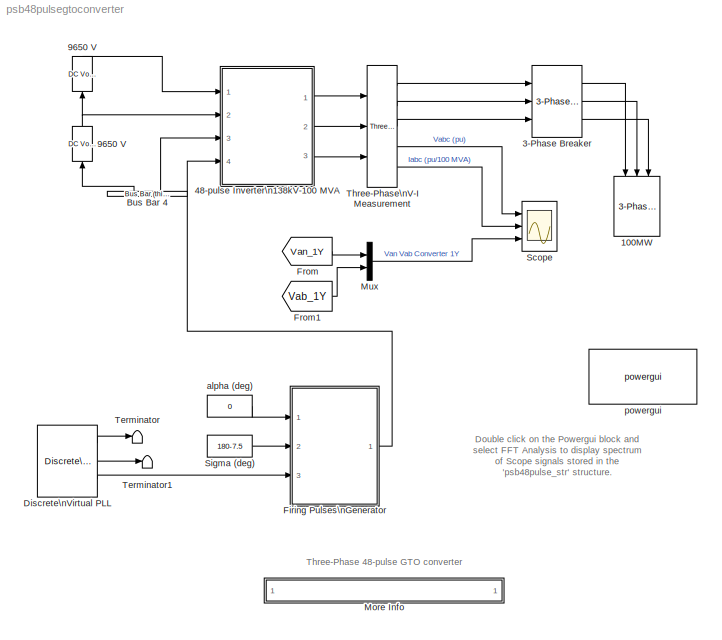
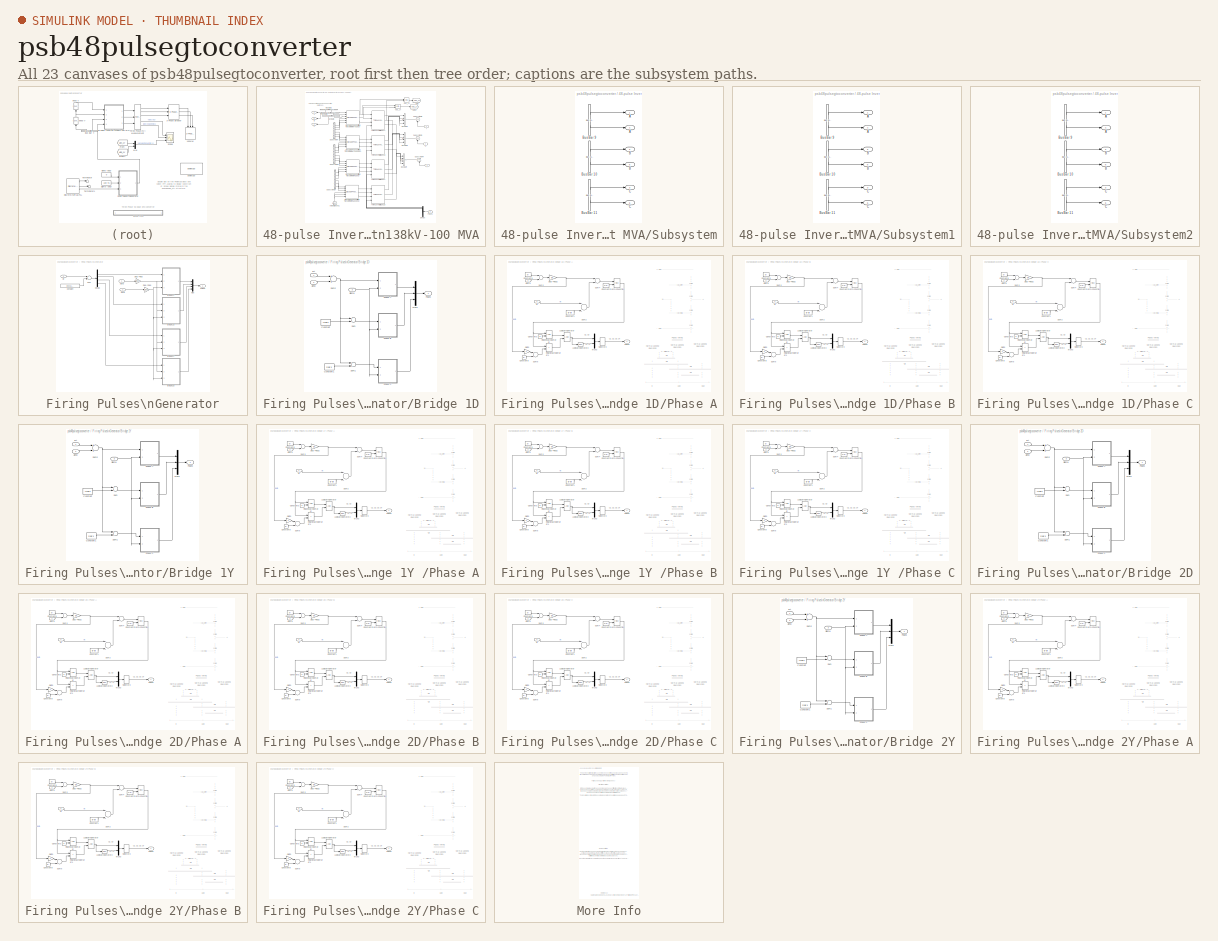
[diagram: thumbnail index - all 23 canvases of the model, root first then tree order]
MODEL psb48pulsegtoconverter
KIND model
CONFIG InitFcn = powericon('psbinitsys',bdroot);
BLOCK [Reference] 100MW  REF=powerlib2/Elements/3-Phase\nSeries RLC Load
  P3 = 100e6
  Ports = [3]
  QC3 = 0
  QL3 = 0
  SourceBlock = powerlib2/Elements/3-Phase\nSeries RLC Load
  SourceType = 3-phase series RLC load
  Vpp = 138e3
  fn = 60
BLOCK [Reference] 3-Phase Breaker  REF=powerlib2/Elements/3-Phase Breaker
  Cp = inf
  Ports = [3, 3]
  Ron = 0.001
  Rp = 1e6
  SourceBlock = powerlib2/Elements/3-Phase Breaker
  SourceType = Three-Phase Breaker
  Ts = 0
  comext = off
  init_states = open
  mesure = None
  sa = on
  sb = on
  sc = on
  sw_times = [0.025]
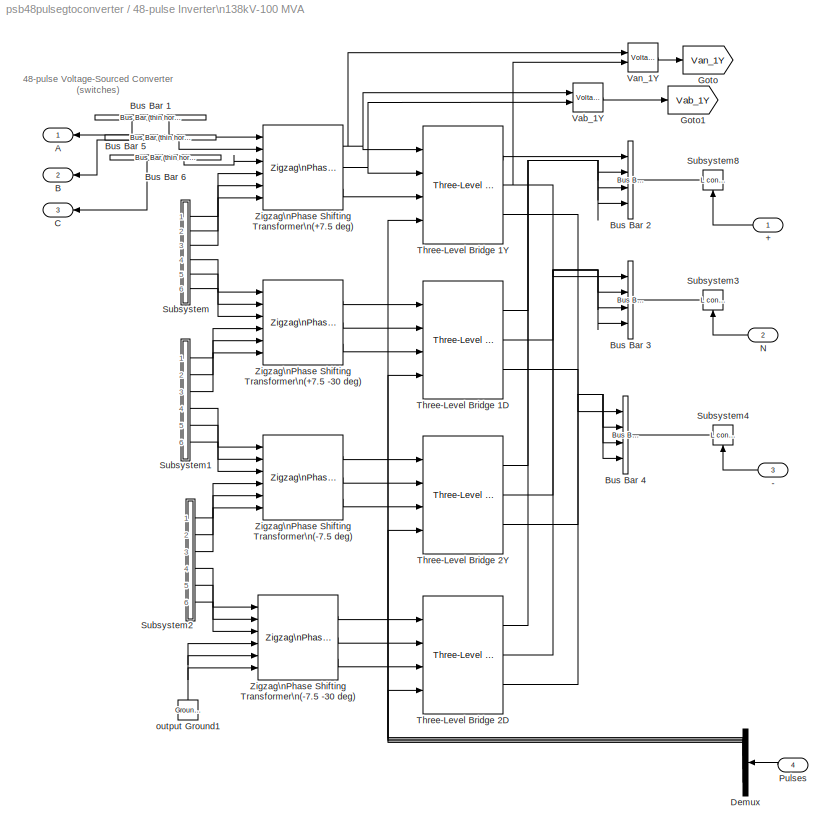
BLOCK [SubSystem] 48-pulse Inverter\n138kV-100 MVA
  MaskIconFrame = on
  MaskIconOpaque = on
  MaskIconRotate = none
  MaskIconUnits = autoscale
  MinAlgLoopOccurrences = off
  Ports = [4, 3]
  RTWSystemCode = Auto
  TreatAsAtomicUnit = off
BLOCK [Inport] 48-pulse Inverter\n138kV-100 MVA/+
  IconDisplay = Port number
  LatchInput = off
  Port = 1
BLOCK [Inport] 48-pulse Inverter\n138kV-100 MVA/-
  IconDisplay = Port number
  LatchInput = off
  Port = 3
BLOCK [Outport] 48-pulse Inverter\n138kV-100 MVA/A
  BusOutputAsStruct = off
  IconDisplay = Port number
BLOCK [Outport] 48-pulse Inverter\n138kV-100 MVA/B
  BusOutputAsStruct = off
  IconDisplay = Port number
  Port = 2
BLOCK [Reference] 48-pulse Inverter\n138kV-100 MVA/Bus Bar 1  REF=powerlib2/Connectors/Bus Bar (thin horiz)
  PSBOutputType = 111111111111111111111111111111111111111111111111111111111111111111111111111111111111
  Ports = [0, 2]
  SourceBlock = powerlib2/Connectors/Bus Bar (thin horiz)
  SourceType = Bus Bar
  Tag = PoWeRsYsTeMbLoCk
  input = 0
  output = 2
BLOCK [Reference] 48-pulse Inverter\n138kV-100 MVA/Bus Bar 2  REF=powerlib2/Connectors/Bus Bar (vert)
  PSBOutputType = 11111111111111111111111111111111111111111111111111111111111111111111111111111111111111111
  Ports = [4, 1]
  SourceBlock = powerlib2/Connectors/Bus Bar (vert)
  SourceType = Bus Bar
  Tag = PoWeRsYsTeMbLoCk
  entrees = 4
  sorties = 1
BLOCK [Reference] 48-pulse Inverter\n138kV-100 MVA/Bus Bar 3  REF=powerlib2/Connectors/Bus Bar (vert)
  PSBOutputType = 11111111111111111111111111111111111111111111111111111111111111111111111111111111111111111
  Ports = [4, 1]
  SourceBlock = powerlib2/Connectors/Bus Bar (vert)
  SourceType = Bus Bar
  Tag = PoWeRsYsTeMbLoCk
  entrees = 4
  sorties = 1
BLOCK [Reference] 48-pulse Inverter\n138kV-100 MVA/Bus Bar 4  REF=powerlib2/Connectors/Bus Bar (vert)
  PSBOutputType = 11111111111111111111111111111111111111111111111111111111111111111111111111111111111111111
  Ports = [4, 1]
  SourceBlock = powerlib2/Connectors/Bus Bar (vert)
  SourceType = Bus Bar
  Tag = PoWeRsYsTeMbLoCk
  entrees = 4
  sorties = 1
BLOCK [Reference] 48-pulse Inverter\n138kV-100 MVA/Bus Bar 5  REF=powerlib2/Connectors/Bus Bar (thin horiz)
  PSBOutputType = 111111111111111111111111111111111111111111111111111111111111111111111111111111111111
  Ports = [0, 2]
  SourceBlock = powerlib2/Connectors/Bus Bar (thin horiz)
  SourceType = Bus Bar
  Tag = PoWeRsYsTeMbLoCk
  input = 0
  output = 2
BLOCK [Reference] 48-pulse Inverter\n138kV-100 MVA/Bus Bar 6  REF=powerlib2/Connectors/Bus Bar (thin horiz)
  PSBOutputType = 111111111111111111111111111111111111111111111111111111111111111111111111111111111111
  Ports = [0, 2]
  SourceBlock = powerlib2/Connectors/Bus Bar (thin horiz)
  SourceType = Bus Bar
  Tag = PoWeRsYsTeMbLoCk
  input = 0
  output = 2
BLOCK [Outport] 48-pulse Inverter\n138kV-100 MVA/C
  BusOutputAsStruct = off
  IconDisplay = Port number
  Port = 3
BLOCK [Demux] 48-pulse Inverter\n138kV-100 MVA/Demux
  Outputs = [12 12 12 12]
  Ports = [1, 4]
BLOCK [Goto] 48-pulse Inverter\n138kV-100 MVA/Goto
  DialogController = Simulink.DDGSource
  GotoTag = Van_1Y
  TagVisibility = global
BLOCK [Goto] 48-pulse Inverter\n138kV-100 MVA/Goto1
  DialogController = Simulink.DDGSource
  GotoTag = Vab_1Y
  TagVisibility = global
BLOCK [Inport] 48-pulse Inverter\n138kV-100 MVA/N
  IconDisplay = Port number
  LatchInput = off
  Port = 2
BLOCK [Inport] 48-pulse Inverter\n138kV-100 MVA/Pulses
  IconDisplay = Port number
  LatchInput = off
  Port = 4
  PortDimensions = 48
BLOCK [SubSystem] 48-pulse Inverter\n138kV-100 MVA/Subsystem
  MinAlgLoopOccurrences = off
  Ports = [0, 6]
  RTWSystemCode = Auto
  TreatAsAtomicUnit = off
BLOCK [Outport] 48-pulse Inverter\n138kV-100 MVA/Subsystem/ A
  BusOutputAsStruct = off
  IconDisplay = Port number
  Port = 4
BLOCK [Outport] 48-pulse Inverter\n138kV-100 MVA/Subsystem/ B
  BusOutputAsStruct = off
  IconDisplay = Port number
  Port = 5
BLOCK [Outport] 48-pulse Inverter\n138kV-100 MVA/Subsystem/ C
  BusOutputAsStruct = off
  IconDisplay = Port number
  Port = 6
BLOCK [Outport] 48-pulse Inverter\n138kV-100 MVA/Subsystem/A
  BusOutputAsStruct = off
  IconDisplay = Port number
BLOCK [Outport] 48-pulse Inverter\n138kV-100 MVA/Subsystem/B
  BusOutputAsStruct = off
  IconDisplay = Port number
  Port = 2
BLOCK [Reference] 48-pulse Inverter\n138kV-100 MVA/Subsystem/Bus Bar 10  REF=powerlib2/Connectors/Bus Bar (thin horiz)
  PSBOutputType = 111111111111111111111111111111111111111111111111111111111111111111111111111111111111
  Ports = [0, 2]
  SourceBlock = powerlib2/Connectors/Bus Bar (thin horiz)
  SourceType = Bus Bar
  Tag = PoWeRsYsTeMbLoCk
  input = 0
  output = 2
BLOCK [Reference] 48-pulse Inverter\n138kV-100 MVA/Subsystem/Bus Bar 11  REF=powerlib2/Connectors/Bus Bar (thin horiz)
  PSBOutputType = 111111111111111111111111111111111111111111111111111111111111111111111111111111111111
  Ports = [0, 2]
  SourceBlock = powerlib2/Connectors/Bus Bar (thin horiz)
  SourceType = Bus Bar
  Tag = PoWeRsYsTeMbLoCk
  input = 0
  output = 2
BLOCK [Reference] 48-pulse Inverter\n138kV-100 MVA/Subsystem/Bus Bar 9  REF=powerlib2/Connectors/Bus Bar (thin horiz)
  PSBOutputType = 111111111111111111111111111111111111111111111111111111111111111111111111111111111111
  Ports = [0, 2]
  SourceBlock = powerlib2/Connectors/Bus Bar (thin horiz)
  SourceType = Bus Bar
  Tag = PoWeRsYsTeMbLoCk
  input = 0
  output = 2
BLOCK [Outport] 48-pulse Inverter\n138kV-100 MVA/Subsystem/C
  BusOutputAsStruct = off
  IconDisplay = Port number
  Port = 3
BLOCK [SubSystem] 48-pulse Inverter\n138kV-100 MVA/Subsystem1
  MinAlgLoopOccurrences = off
  Ports = [0, 6]
  RTWSystemCode = Auto
  TreatAsAtomicUnit = off
BLOCK [Outport] 48-pulse Inverter\n138kV-100 MVA/Subsystem1/ A
  BusOutputAsStruct = off
  IconDisplay = Port number
  Port = 4
BLOCK [Outport] 48-pulse Inverter\n138kV-100 MVA/Subsystem1/ B
  BusOutputAsStruct = off
  IconDisplay = Port number
  Port = 5
BLOCK [Outport] 48-pulse Inverter\n138kV-100 MVA/Subsystem1/ C
  BusOutputAsStruct = off
  IconDisplay = Port number
  Port = 6
BLOCK [Outport] 48-pulse Inverter\n138kV-100 MVA/Subsystem1/A
  BusOutputAsStruct = off
  IconDisplay = Port number
BLOCK [Outport] 48-pulse Inverter\n138kV-100 MVA/Subsystem1/B
  BusOutputAsStruct = off
  IconDisplay = Port number
  Port = 2
BLOCK [Reference] 48-pulse Inverter\n138kV-100 MVA/Subsystem1/Bus Bar 10  REF=powerlib2/Connectors/Bus Bar (thin horiz)
  PSBOutputType = 111111111111111111111111111111111111111111111111111111111111111111111111111111111111
  Ports = [0, 2]
  SourceBlock = powerlib2/Connectors/Bus Bar (thin horiz)
  SourceType = Bus Bar
  Tag = PoWeRsYsTeMbLoCk
  input = 0
  output = 2
BLOCK [Reference] 48-pulse Inverter\n138kV-100 MVA/Subsystem1/Bus Bar 11  REF=powerlib2/Connectors/Bus Bar (thin horiz)
  PSBOutputType = 111111111111111111111111111111111111111111111111111111111111111111111111111111111111
  Ports = [0, 2]
  SourceBlock = powerlib2/Connectors/Bus Bar (thin horiz)
  SourceType = Bus Bar
  Tag = PoWeRsYsTeMbLoCk
  input = 0
  output = 2
BLOCK [Reference] 48-pulse Inverter\n138kV-100 MVA/Subsystem1/Bus Bar 9  REF=powerlib2/Connectors/Bus Bar (thin horiz)
  PSBOutputType = 111111111111111111111111111111111111111111111111111111111111111111111111111111111111
  Ports = [0, 2]
  SourceBlock = powerlib2/Connectors/Bus Bar (thin horiz)
  SourceType = Bus Bar
  Tag = PoWeRsYsTeMbLoCk
  input = 0
  output = 2
BLOCK [Outport] 48-pulse Inverter\n138kV-100 MVA/Subsystem1/C
  BusOutputAsStruct = off
  IconDisplay = Port number
  Port = 3
BLOCK [SubSystem] 48-pulse Inverter\n138kV-100 MVA/Subsystem2
  MinAlgLoopOccurrences = off
  Ports = [0, 6]
  RTWSystemCode = Auto
  TreatAsAtomicUnit = off
BLOCK [Outport] 48-pulse Inverter\n138kV-100 MVA/Subsystem2/ A
  BusOutputAsStruct = off
  IconDisplay = Port number
  Port = 4
BLOCK [Outport] 48-pulse Inverter\n138kV-100 MVA/Subsystem2/ B
  BusOutputAsStruct = off
  IconDisplay = Port number
  Port = 5
BLOCK [Outport] 48-pulse Inverter\n138kV-100 MVA/Subsystem2/ C
  BusOutputAsStruct = off
  IconDisplay = Port number
  Port = 6
BLOCK [Outport] 48-pulse Inverter\n138kV-100 MVA/Subsystem2/A
  BusOutputAsStruct = off
  IconDisplay = Port number
BLOCK [Outport] 48-pulse Inverter\n138kV-100 MVA/Subsystem2/B
  BusOutputAsStruct = off
  IconDisplay = Port number
  Port = 2
BLOCK [Reference] 48-pulse Inverter\n138kV-100 MVA/Subsystem2/Bus Bar 10  REF=powerlib2/Connectors/Bus Bar (thin horiz)
  PSBOutputType = 111111111111111111111111111111111111111111111111111111111111111111111111111111111111
  Ports = [0, 2]
  SourceBlock = powerlib2/Connectors/Bus Bar (thin horiz)
  SourceType = Bus Bar
  Tag = PoWeRsYsTeMbLoCk
  input = 0
  output = 2
BLOCK [Reference] 48-pulse Inverter\n138kV-100 MVA/Subsystem2/Bus Bar 11  REF=powerlib2/Connectors/Bus Bar (thin horiz)
  PSBOutputType = 111111111111111111111111111111111111111111111111111111111111111111111111111111111111
  Ports = [0, 2]
  SourceBlock = powerlib2/Connectors/Bus Bar (thin horiz)
  SourceType = Bus Bar
  Tag = PoWeRsYsTeMbLoCk
  input = 0
  output = 2
BLOCK [Reference] 48-pulse Inverter\n138kV-100 MVA/Subsystem2/Bus Bar 9  REF=powerlib2/Connectors/Bus Bar (thin horiz)
  PSBOutputType = 111111111111111111111111111111111111111111111111111111111111111111111111111111111111
  Ports = [0, 2]
  SourceBlock = powerlib2/Connectors/Bus Bar (thin horiz)
  SourceType = Bus Bar
  Tag = PoWeRsYsTeMbLoCk
  input = 0
  output = 2
BLOCK [Outport] 48-pulse Inverter\n138kV-100 MVA/Subsystem2/C
  BusOutputAsStruct = off
  IconDisplay = Port number
  Port = 3
BLOCK [Reference] 48-pulse Inverter\n138kV-100 MVA/Subsystem3  REF=powerlib2/Connectors/L connector
  Ports = [1, 0, 1]
  SourceBlock = powerlib2/Connectors/L connector
  SourceType = Bus Bar
  Tag = PoWeRsYsTeMbLoCk
BLOCK [Reference] 48-pulse Inverter\n138kV-100 MVA/Subsystem4  REF=powerlib2/Connectors/L connector
  Ports = [1, 0, 1]
  SourceBlock = powerlib2/Connectors/L connector
  SourceType = Bus Bar
  Tag = PoWeRsYsTeMbLoCk
BLOCK [Reference] 48-pulse Inverter\n138kV-100 MVA/Subsystem8  REF=powerlib2/Connectors/L connector
  Ports = [1, 0, 1]
  SourceBlock = powerlib2/Connectors/L connector
  SourceType = Bus Bar
  Tag = PoWeRsYsTeMbLoCk
BLOCK [Reference] 48-pulse Inverter\n138kV-100 MVA/Three-Level Bridge 1D  REF=powerlib2/Power\nElectronics/Three-Level Bridge
  Cs = inf
  PAr_vf = [  0  0  ]
  PSBOutputType = 111
  Ports = [4, 3]
  Ron = 1e-4
  Rs = 1e6
  SourceBlock = powerlib2/Power\nElectronics/Three-Level Bridge
  SourceType = Three-Level Bridge
  Tag = PoWeRsYsTeMbLoCk
  arms = 3
  confi = ABC as input terminals
  device = Ideal Switches
  mesure = None
BLOCK [Reference] 48-pulse Inverter\n138kV-100 MVA/Three-Level Bridge 1Y  REF=powerlib2/Power\nElectronics/Three-Level Bridge
  Cs = inf
  PAr_vf = [  0  0  ]
  PSBOutputType = 111
  Ports = [4, 3]
  Ron = 1e-4
  Rs = 1e6
  SourceBlock = powerlib2/Power\nElectronics/Three-Level Bridge
  SourceType = Three-Level Bridge
  Tag = PoWeRsYsTeMbLoCk
  arms = 3
  confi = ABC as input terminals
  device = Ideal Switches
  mesure = None
BLOCK [Reference] 48-pulse Inverter\n138kV-100 MVA/Three-Level Bridge 2D  REF=powerlib2/Power\nElectronics/Three-Level Bridge
  Cs = inf
  PAr_vf = [  0  0  ]
  PSBOutputType = 111
  Ports = [4, 3]
  Ron = 1e-4
  Rs = 1e6
  SourceBlock = powerlib2/Power\nElectronics/Three-Level Bridge
  SourceType = Three-Level Bridge
  Tag = PoWeRsYsTeMbLoCk
  arms = 3
  confi = ABC as input terminals
  device = Ideal Switches
  mesure = None
BLOCK [Reference] 48-pulse Inverter\n138kV-100 MVA/Three-Level Bridge 2Y  REF=powerlib2/Power\nElectronics/Three-Level Bridge
  Cs = inf
  PAr_vf = [  0  0  ]
  PSBOutputType = 111
  Ports = [4, 3]
  Ron = 1e-4
  Rs = 1e6
  SourceBlock = powerlib2/Power\nElectronics/Three-Level Bridge
  SourceType = Three-Level Bridge
  Tag = PoWeRsYsTeMbLoCk
  arms = 3
  confi = ABC as input terminals
  device = Ideal Switches
  mesure = None
BLOCK [Reference] 48-pulse Inverter\n138kV-100 MVA/Vab_1Y  REF=powerlib2/Measurements/Voltage Measurement
  OutputType = Magnitude
  PSBOutputType = 0
  PSBequivalent = 0
  PhasorSimulation = off
  Ports = [2, 1]
  SourceBlock = powerlib2/Measurements/Voltage Measurement
  SourceType = Voltage Measurement
  Tag = PoWeRsYsTeMmEaSuReMeNt
BLOCK [Reference] 48-pulse Inverter\n138kV-100 MVA/Van_1Y  REF=powerlib2/Measurements/Voltage Measurement
  OutputType = Magnitude
  PSBOutputType = 0
  PSBequivalent = 0
  PhasorSimulation = off
  Ports = [2, 1]
  SourceBlock = powerlib2/Measurements/Voltage Measurement
  SourceType = Voltage Measurement
  Tag = PoWeRsYsTeMmEaSuReMeNt
BLOCK [Reference] 48-pulse Inverter\n138kV-100 MVA/Zigzag\nPhase Shifting Transformer\n(+7.5 -30 deg)  REF=powerlib2/Elements/Zigzag\nPhase-Shifting Transformer
  PSBOutputType = 111
  Ports = [6, 3]
  SourceBlock = powerlib2/Elements/Zigzag\nPhase-Shifting Transformer
  SourceType = Zig-Zag Phase-Shifting Transformer
  Tag = PoWeRsYsTeMbLoCk
  conex = Delta D1(-30 deg.)
  mesure = None
  pfnom = [ 25e6 60]
  rmag = 500
  rx1 = [ 0.00125 0.05 ]
  rx2 = [ 0.00125 0.05 ]
  rx3 = [ 0.00125 0.05 ]
  rxm = [ 500 500 ]
  satcheck = off
  saturation = [ 0,0  ;  0.005,1.2  ;  1.0,1.4 ]
  uphisec = [ 15e3  +7.5]
  uprim = 138e3/4
BLOCK [Reference] 48-pulse Inverter\n138kV-100 MVA/Zigzag\nPhase Shifting Transformer\n(+7.5 deg)  REF=powerlib2/Elements/Zigzag\nPhase-Shifting Transformer
  PSBOutputType = 111
  Ports = [6, 3]
  SourceBlock = powerlib2/Elements/Zigzag\nPhase-Shifting Transformer
  SourceType = Zig-Zag Phase-Shifting Transformer
  Tag = PoWeRsYsTeMbLoCk
  conex = Y
  mesure = None
  pfnom = [ 25e6 60]
  rmag = 500
  rx1 = [ 0.00125 0.05 ]
  rx2 = [ 0.00125 0.05 ]
  rx3 = [ 0.00125 0.05 ]
  rxm = [ 500 500 ]
  satcheck = off
  saturation = [ 0,0  ;  0.005,1.2  ;  1.0,1.4 ]
  uphisec = [ 15e3  +7.5]
  uprim = 138e3/4
BLOCK [Reference] 48-pulse Inverter\n138kV-100 MVA/Zigzag\nPhase Shifting Transformer\n(-7.5 -30 deg)  REF=powerlib2/Elements/Zigzag\nPhase-Shifting Transformer
  PSBOutputType = 111
  Ports = [6, 3]
  SourceBlock = powerlib2/Elements/Zigzag\nPhase-Shifting Transformer
  SourceType = Zig-Zag Phase-Shifting Transformer
  Tag = PoWeRsYsTeMbLoCk
  conex = Delta D1(-30 deg.)
  mesure = None
  pfnom = [ 25e6 60]
  rmag = 500
  rx1 = [ 0.00125 0.05 ]
  rx2 = [ 0.00125 0.05 ]
  rx3 = [ 0.00125 0.05 ]
  rxm = [ 500 500 ]
  satcheck = off
  saturation = [ 0,0  ;  0.005,1.2  ;  1.0,1.4 ]
  uphisec = [ 15e3  -7.5]
  uprim = 138e3/4
BLOCK [Reference] 48-pulse Inverter\n138kV-100 MVA/Zigzag\nPhase Shifting Transformer\n(-7.5 deg)  REF=powerlib2/Elements/Zigzag\nPhase-Shifting Transformer
  PSBOutputType = 111
  Ports = [6, 3]
  SourceBlock = powerlib2/Elements/Zigzag\nPhase-Shifting Transformer
  SourceType = Zig-Zag Phase-Shifting Transformer
  Tag = PoWeRsYsTeMbLoCk
  conex = Y
  mesure = None
  pfnom = [ 25e6 60]
  rmag = 500
  rx1 = [ 0.00125 0.05 ]
  rx2 = [ 0.00125 0.05 ]
  rx3 = [ 0.00125 0.05 ]
  rxm = [ 500 500 ]
  satcheck = off
  saturation = [ 0,0  ;  0.005,1.2  ;  1.0,1.4 ]
  uphisec = [ 15e3  -7.5]
  uprim = 138e3/4
BLOCK [Reference] 48-pulse Inverter\n138kV-100 MVA/output Ground1  REF=powerlib2/Connectors/Ground (output)
  PSBOutputType = 1
  Ports = [0, 1]
  SourceBlock = powerlib2/Connectors/Ground (output)
  SourceType = Ground
  Tag = PoWeRsYsTeMbLoCk
BLOCK [Reference] 9650 V   REF=powerlib2/Electrical\nSources/DC Voltage Source
  Description = source block
  PSBOutputType = 1
  Ports = [1, 1]
  SourceBlock = powerlib2/Electrical\nSources/DC Voltage Source
  SourceType = DC Voltage Source
  Tag = PoWeRsYsTeMbLoCk
  V = 9650
  mesure = None
BLOCK [Reference] 9650 V    REF=powerlib2/Electrical\nSources/DC Voltage Source
  Description = source block
  PSBOutputType = 1
  Ports = [1, 1]
  SourceBlock = powerlib2/Electrical\nSources/DC Voltage Source
  SourceType = DC Voltage Source
  Tag = PoWeRsYsTeMbLoCk
  V = 9650
  mesure = None
BLOCK [Reference] Bus Bar 4  REF=powerlib2/Connectors/Bus Bar (thin horiz)
  PSBOutputType = 111111111111111111111111111111111111111111111111111111111111111111111111111111111111
  Ports = [0, 2]
  SourceBlock = powerlib2/Connectors/Bus Bar (thin horiz)
  SourceType = Bus Bar
  Tag = PoWeRsYsTeMbLoCk
  input = 0
  output = 2
BLOCK [Reference] Discrete\nVirtual PLL  REF=powerlib_extras/Discrete \nControl Blocks/Discrete\nVirtual PLL
  Freq = 60
  Phase = 0
  Ports = [0, 3]
  SourceBlock = powerlib_extras/Discrete \nControl Blocks/Discrete\nVirtual PLL
  SourceType = Discrete Virtual PLL
  Ts = 5e-6
BLOCK [SubSystem] Firing Pulses\nGenerator
  MinAlgLoopOccurrences = off
  Ports = [3, 1]
  RTWSystemCode = Auto
  TreatAsAtomicUnit = off
BLOCK [Inport] Firing Pulses\nGenerator/Alpha
  IconDisplay = Port number
  LatchInput = off
  Port = 1
  PortDimensions = 1
BLOCK [SubSystem] Firing Pulses\nGenerator/Bridge 1D
  MinAlgLoopOccurrences = off
  Ports = [3, 1]
  RTWSystemCode = Auto
  TreatAsAtomicUnit = off
BLOCK [Inport] Firing Pulses\nGenerator/Bridge 1D/Alpha
  IconDisplay = Port number
  LatchInput = off
  Port = 2
  PortDimensions = 1
BLOCK [Constant] Firing Pulses\nGenerator/Bridge 1D/Constant
  Value = -2*pi/3
BLOCK [Constant] Firing Pulses\nGenerator/Bridge 1D/Constant1
  Value = 2*pi/3
BLOCK [Mux] Firing Pulses\nGenerator/Bridge 1D/Mux1
  DisplayOption = bar
  Inputs = [4 4 4]
  Ports = [3, 1]
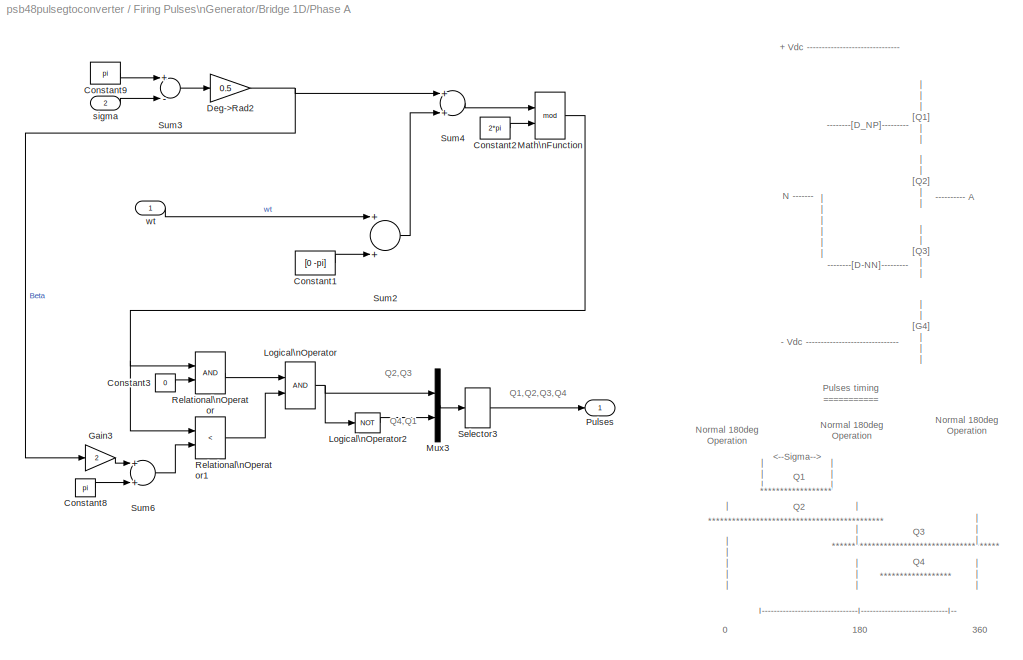
BLOCK [SubSystem] Firing Pulses\nGenerator/Bridge 1D/Phase A
  MinAlgLoopOccurrences = off
  Ports = [2, 1]
  RTWSystemCode = Auto
  TreatAsAtomicUnit = off
BLOCK [Constant] Firing Pulses\nGenerator/Bridge 1D/Phase A/Constant1
  Value = [0 -pi]
BLOCK [Constant] Firing Pulses\nGenerator/Bridge 1D/Phase A/Constant2
  Value = 2*pi
BLOCK [Constant] Firing Pulses\nGenerator/Bridge 1D/Phase A/Constant3
  Value = 0
BLOCK [Constant] Firing Pulses\nGenerator/Bridge 1D/Phase A/Constant8
  Value = pi
BLOCK [Constant] Firing Pulses\nGenerator/Bridge 1D/Phase A/Constant9
  Value = pi
BLOCK [Gain] Firing Pulses\nGenerator/Bridge 1D/Phase A/Deg->Rad2
  Gain = 0.5
BLOCK [Gain] Firing Pulses\nGenerator/Bridge 1D/Phase A/Gain3
  Gain = 2
BLOCK [Logic] Firing Pulses\nGenerator/Bridge 1D/Phase A/Logical\nOperator
  Ports = [2, 1]
BLOCK [Logic] Firing Pulses\nGenerator/Bridge 1D/Phase A/Logical\nOperator2
  Operator = NOT
  Ports = [1, 1]
BLOCK [Math] Firing Pulses\nGenerator/Bridge 1D/Phase A/Math\nFunction
  Operator = mod
  Ports = [2, 1]
BLOCK [Mux] Firing Pulses\nGenerator/Bridge 1D/Phase A/Mux3
  DisplayOption = bar
  Inputs = [2 2]
  Ports = [2, 1]
BLOCK [Outport] Firing Pulses\nGenerator/Bridge 1D/Phase A/Pulses
  BusOutputAsStruct = off
  IconDisplay = Port number
BLOCK [RelationalOperator] Firing Pulses\nGenerator/Bridge 1D/Phase A/Relational\nOperator
  ZeroCross = off
BLOCK [RelationalOperator] Firing Pulses\nGenerator/Bridge 1D/Phase A/Relational\nOperator1
  Operator = <
  ZeroCross = off
BLOCK [Selector] Firing Pulses\nGenerator/Bridge 1D/Phase A/Selector3
  Elements = [4 1 2 3]
  InputPortWidth = 4
  Ports = [1, 1]
BLOCK [Sum] Firing Pulses\nGenerator/Bridge 1D/Phase A/Sum2
  Ports = [2, 1]
BLOCK [Sum] Firing Pulses\nGenerator/Bridge 1D/Phase A/Sum3
  Inputs = +-
  Ports = [2, 1]
BLOCK [Sum] Firing Pulses\nGenerator/Bridge 1D/Phase A/Sum4
  Ports = [2, 1]
BLOCK [Sum] Firing Pulses\nGenerator/Bridge 1D/Phase A/Sum6
  Ports = [2, 1]
BLOCK [Inport] Firing Pulses\nGenerator/Bridge 1D/Phase A/sigma
  IconDisplay = Port number
  LatchInput = off
  Port = 2
  PortDimensions = 1
BLOCK [Inport] Firing Pulses\nGenerator/Bridge 1D/Phase A/wt
  IconDisplay = Port number
  LatchInput = off
  Port = 1
  PortDimensions = 1
BLOCK [SubSystem] Firing Pulses\nGenerator/Bridge 1D/Phase B
  MinAlgLoopOccurrences = off
  Ports = [2, 1]
  RTWSystemCode = Auto
  TreatAsAtomicUnit = off
BLOCK [Constant] Firing Pulses\nGenerator/Bridge 1D/Phase B/Constant1
  Value = [0 -pi]
BLOCK [Constant] Firing Pulses\nGenerator/Bridge 1D/Phase B/Constant2
  Value = 2*pi
BLOCK [Constant] Firing Pulses\nGenerator/Bridge 1D/Phase B/Constant3
  Value = 0
BLOCK [Constant] Firing Pulses\nGenerator/Bridge 1D/Phase B/Constant8
  Value = pi
BLOCK [Constant] Firing Pulses\nGenerator/Bridge 1D/Phase B/Constant9
  Value = pi
BLOCK [Gain] Firing Pulses\nGenerator/Bridge 1D/Phase B/Deg->Rad2
  Gain = 0.5
BLOCK [Gain] Firing Pulses\nGenerator/Bridge 1D/Phase B/Gain3
  Gain = 2
BLOCK [Logic] Firing Pulses\nGenerator/Bridge 1D/Phase B/Logical\nOperator
  Ports = [2, 1]
BLOCK [Logic] Firing Pulses\nGenerator/Bridge 1D/Phase B/Logical\nOperator2
  Operator = NOT
  Ports = [1, 1]
BLOCK [Math] Firing Pulses\nGenerator/Bridge 1D/Phase B/Math\nFunction
  Operator = mod
  Ports = [2, 1]
BLOCK [Mux] Firing Pulses\nGenerator/Bridge 1D/Phase B/Mux3
  DisplayOption = bar
  Inputs = [2 2]
  Ports = [2, 1]
BLOCK [Outport] Firing Pulses\nGenerator/Bridge 1D/Phase B/Pulses
  BusOutputAsStruct = off
  IconDisplay = Port number
BLOCK [RelationalOperator] Firing Pulses\nGenerator/Bridge 1D/Phase B/Relational\nOperator
  ZeroCross = off
BLOCK [RelationalOperator] Firing Pulses\nGenerator/Bridge 1D/Phase B/Relational\nOperator1
  Operator = <
  ZeroCross = off
BLOCK [Selector] Firing Pulses\nGenerator/Bridge 1D/Phase B/Selector3
  Elements = [4 1 2 3]
  InputPortWidth = 4
  Ports = [1, 1]
BLOCK [Sum] Firing Pulses\nGenerator/Bridge 1D/Phase B/Sum2
  Ports = [2, 1]
BLOCK [Sum] Firing Pulses\nGenerator/Bridge 1D/Phase B/Sum3
  Inputs = +-
  Ports = [2, 1]
BLOCK [Sum] Firing Pulses\nGenerator/Bridge 1D/Phase B/Sum4
  Ports = [2, 1]
BLOCK [Sum] Firing Pulses\nGenerator/Bridge 1D/Phase B/Sum6
  Ports = [2, 1]
BLOCK [Inport] Firing Pulses\nGenerator/Bridge 1D/Phase B/sigma
  IconDisplay = Port number
  LatchInput = off
  Port = 2
  PortDimensions = 1
BLOCK [Inport] Firing Pulses\nGenerator/Bridge 1D/Phase B/wt
  IconDisplay = Port number
  LatchInput = off
  Port = 1
  PortDimensions = 1
BLOCK [SubSystem] Firing Pulses\nGenerator/Bridge 1D/Phase C
  MinAlgLoopOccurrences = off
  Ports = [2, 1]
  RTWSystemCode = Auto
  TreatAsAtomicUnit = off
BLOCK [Constant] Firing Pulses\nGenerator/Bridge 1D/Phase C/Constant1
  Value = [0 -pi]
BLOCK [Constant] Firing Pulses\nGenerator/Bridge 1D/Phase C/Constant2
  Value = 2*pi
BLOCK [Constant] Firing Pulses\nGenerator/Bridge 1D/Phase C/Constant3
  Value = 0
BLOCK [Constant] Firing Pulses\nGenerator/Bridge 1D/Phase C/Constant8
  Value = pi
BLOCK [Constant] Firing Pulses\nGenerator/Bridge 1D/Phase C/Constant9
  Value = pi
BLOCK [Gain] Firing Pulses\nGenerator/Bridge 1D/Phase C/Deg->Rad2
  Gain = 0.5
BLOCK [Gain] Firing Pulses\nGenerator/Bridge 1D/Phase C/Gain3
  Gain = 2
BLOCK [Logic] Firing Pulses\nGenerator/Bridge 1D/Phase C/Logical\nOperator
  Ports = [2, 1]
BLOCK [Logic] Firing Pulses\nGenerator/Bridge 1D/Phase C/Logical\nOperator2
  Operator = NOT
  Ports = [1, 1]
BLOCK [Math] Firing Pulses\nGenerator/Bridge 1D/Phase C/Math\nFunction
  Operator = mod
  Ports = [2, 1]
BLOCK [Mux] Firing Pulses\nGenerator/Bridge 1D/Phase C/Mux3
  DisplayOption = bar
  Inputs = [2 2]
  Ports = [2, 1]
BLOCK [Outport] Firing Pulses\nGenerator/Bridge 1D/Phase C/Pulses
  BusOutputAsStruct = off
  IconDisplay = Port number
BLOCK [RelationalOperator] Firing Pulses\nGenerator/Bridge 1D/Phase C/Relational\nOperator
  ZeroCross = off
BLOCK [RelationalOperator] Firing Pulses\nGenerator/Bridge 1D/Phase C/Relational\nOperator1
  Operator = <
  ZeroCross = off
BLOCK [Selector] Firing Pulses\nGenerator/Bridge 1D/Phase C/Selector3
  Elements = [4 1 2 3]
  InputPortWidth = 4
  Ports = [1, 1]
BLOCK [Sum] Firing Pulses\nGenerator/Bridge 1D/Phase C/Sum2
  Ports = [2, 1]
BLOCK [Sum] Firing Pulses\nGenerator/Bridge 1D/Phase C/Sum3
  Inputs = +-
  Ports = [2, 1]
BLOCK [Sum] Firing Pulses\nGenerator/Bridge 1D/Phase C/Sum4
  Ports = [2, 1]
BLOCK [Sum] Firing Pulses\nGenerator/Bridge 1D/Phase C/Sum6
  Ports = [2, 1]
BLOCK [Inport] Firing Pulses\nGenerator/Bridge 1D/Phase C/sigma
  IconDisplay = Port number
  LatchInput = off
  Port = 2
  PortDimensions = 1
BLOCK [Inport] Firing Pulses\nGenerator/Bridge 1D/Phase C/wt
  IconDisplay = Port number
  LatchInput = off
  Port = 1
  PortDimensions = 1
BLOCK [Outport] Firing Pulses\nGenerator/Bridge 1D/Pulses
  BusOutputAsStruct = off
  IconDisplay = Port number
BLOCK [Inport] Firing Pulses\nGenerator/Bridge 1D/Sigma
  IconDisplay = Port number
  LatchInput = off
  Port = 3
  PortDimensions = 1
BLOCK [Sum] Firing Pulses\nGenerator/Bridge 1D/Sum
  Ports = [2, 1]
BLOCK [Sum] Firing Pulses\nGenerator/Bridge 1D/Sum1
  Ports = [2, 1]
BLOCK [Sum] Firing Pulses\nGenerator/Bridge 1D/Sum2
  Ports = [2, 1]
BLOCK [Inport] Firing Pulses\nGenerator/Bridge 1D/wt
  IconDisplay = Port number
  LatchInput = off
  Port = 1
  PortDimensions = 1
BLOCK [SubSystem] Firing Pulses\nGenerator/Bridge 1Y 
  MinAlgLoopOccurrences = off
  Ports = [3, 1]
  RTWSystemCode = Auto
  TreatAsAtomicUnit = off
BLOCK [Inport] Firing Pulses\nGenerator/Bridge 1Y /Alpha
  IconDisplay = Port number
  LatchInput = off
  Port = 2
  PortDimensions = 1
BLOCK [Constant] Firing Pulses\nGenerator/Bridge 1Y /Constant
  Value = -2*pi/3
BLOCK [Constant] Firing Pulses\nGenerator/Bridge 1Y /Constant1
  Value = 2*pi/3
BLOCK [Mux] Firing Pulses\nGenerator/Bridge 1Y /Mux1
  DisplayOption = bar
  Inputs = [4 4 4]
  Ports = [3, 1]
BLOCK [SubSystem] Firing Pulses\nGenerator/Bridge 1Y /Phase A
  MinAlgLoopOccurrences = off
  Ports = [2, 1]
  RTWSystemCode = Auto
  TreatAsAtomicUnit = off
BLOCK [Constant] Firing Pulses\nGenerator/Bridge 1Y /Phase A/Constant1
  Value = [0 -pi]
BLOCK [Constant] Firing Pulses\nGenerator/Bridge 1Y /Phase A/Constant2
  Value = 2*pi
BLOCK [Constant] Firing Pulses\nGenerator/Bridge 1Y /Phase A/Constant3
  Value = 0
BLOCK [Constant] Firing Pulses\nGenerator/Bridge 1Y /Phase A/Constant8
  Value = pi
BLOCK [Constant] Firing Pulses\nGenerator/Bridge 1Y /Phase A/Constant9
  Value = pi
BLOCK [Gain] Firing Pulses\nGenerator/Bridge 1Y /Phase A/Deg->Rad2
  Gain = 0.5
BLOCK [Gain] Firing Pulses\nGenerator/Bridge 1Y /Phase A/Gain3
  Gain = 2
BLOCK [Logic] Firing Pulses\nGenerator/Bridge 1Y /Phase A/Logical\nOperator
  Ports = [2, 1]
BLOCK [Logic] Firing Pulses\nGenerator/Bridge 1Y /Phase A/Logical\nOperator2
  Operator = NOT
  Ports = [1, 1]
BLOCK [Math] Firing Pulses\nGenerator/Bridge 1Y /Phase A/Math\nFunction
  Operator = mod
  Ports = [2, 1]
BLOCK [Mux] Firing Pulses\nGenerator/Bridge 1Y /Phase A/Mux3
  DisplayOption = bar
  Inputs = [2 2]
  Ports = [2, 1]
BLOCK [Outport] Firing Pulses\nGenerator/Bridge 1Y /Phase A/Pulses
  BusOutputAsStruct = off
  IconDisplay = Port number
BLOCK [RelationalOperator] Firing Pulses\nGenerator/Bridge 1Y /Phase A/Relational\nOperator
  ZeroCross = off
BLOCK [RelationalOperator] Firing Pulses\nGenerator/Bridge 1Y /Phase A/Relational\nOperator1
  Operator = <
  ZeroCross = off
BLOCK [Selector] Firing Pulses\nGenerator/Bridge 1Y /Phase A/Selector3
  Elements = [4 1 2 3]
  InputPortWidth = 4
  Ports = [1, 1]
BLOCK [Sum] Firing Pulses\nGenerator/Bridge 1Y /Phase A/Sum2
  Ports = [2, 1]
BLOCK [Sum] Firing Pulses\nGenerator/Bridge 1Y /Phase A/Sum3
  Inputs = +-
  Ports = [2, 1]
BLOCK [Sum] Firing Pulses\nGenerator/Bridge 1Y /Phase A/Sum4
  Ports = [2, 1]
BLOCK [Sum] Firing Pulses\nGenerator/Bridge 1Y /Phase A/Sum6
  Ports = [2, 1]
BLOCK [Inport] Firing Pulses\nGenerator/Bridge 1Y /Phase A/sigma
  IconDisplay = Port number
  LatchInput = off
  Port = 2
  PortDimensions = 1
BLOCK [Inport] Firing Pulses\nGenerator/Bridge 1Y /Phase A/wt
  IconDisplay = Port number
  LatchInput = off
  Port = 1
  PortDimensions = 1
BLOCK [SubSystem] Firing Pulses\nGenerator/Bridge 1Y /Phase B
  MinAlgLoopOccurrences = off
  Ports = [2, 1]
  RTWSystemCode = Auto
  TreatAsAtomicUnit = off
BLOCK [Constant] Firing Pulses\nGenerator/Bridge 1Y /Phase B/Constant1
  Value = [0 -pi]
BLOCK [Constant] Firing Pulses\nGenerator/Bridge 1Y /Phase B/Constant2
  Value = 2*pi
BLOCK [Constant] Firing Pulses\nGenerator/Bridge 1Y /Phase B/Constant3
  Value = 0
BLOCK [Constant] Firing Pulses\nGenerator/Bridge 1Y /Phase B/Constant8
  Value = pi
BLOCK [Constant] Firing Pulses\nGenerator/Bridge 1Y /Phase B/Constant9
  Value = pi
BLOCK [Gain] Firing Pulses\nGenerator/Bridge 1Y /Phase B/Deg->Rad2
  Gain = 0.5
BLOCK [Gain] Firing Pulses\nGenerator/Bridge 1Y /Phase B/Gain3
  Gain = 2
BLOCK [Logic] Firing Pulses\nGenerator/Bridge 1Y /Phase B/Logical\nOperator
  Ports = [2, 1]
BLOCK [Logic] Firing Pulses\nGenerator/Bridge 1Y /Phase B/Logical\nOperator2
  Operator = NOT
  Ports = [1, 1]
BLOCK [Math] Firing Pulses\nGenerator/Bridge 1Y /Phase B/Math\nFunction
  Operator = mod
  Ports = [2, 1]
BLOCK [Mux] Firing Pulses\nGenerator/Bridge 1Y /Phase B/Mux3
  DisplayOption = bar
  Inputs = [2 2]
  Ports = [2, 1]
BLOCK [Outport] Firing Pulses\nGenerator/Bridge 1Y /Phase B/Pulses
  BusOutputAsStruct = off
  IconDisplay = Port number
BLOCK [RelationalOperator] Firing Pulses\nGenerator/Bridge 1Y /Phase B/Relational\nOperator
  ZeroCross = off
BLOCK [RelationalOperator] Firing Pulses\nGenerator/Bridge 1Y /Phase B/Relational\nOperator1
  Operator = <
  ZeroCross = off
BLOCK [Selector] Firing Pulses\nGenerator/Bridge 1Y /Phase B/Selector3
  Elements = [4 1 2 3]
  InputPortWidth = 4
  Ports = [1, 1]
BLOCK [Sum] Firing Pulses\nGenerator/Bridge 1Y /Phase B/Sum2
  Ports = [2, 1]
BLOCK [Sum] Firing Pulses\nGenerator/Bridge 1Y /Phase B/Sum3
  Inputs = +-
  Ports = [2, 1]
BLOCK [Sum] Firing Pulses\nGenerator/Bridge 1Y /Phase B/Sum4
  Ports = [2, 1]
BLOCK [Sum] Firing Pulses\nGenerator/Bridge 1Y /Phase B/Sum6
  Ports = [2, 1]
BLOCK [Inport] Firing Pulses\nGenerator/Bridge 1Y /Phase B/sigma
  IconDisplay = Port number
  LatchInput = off
  Port = 2
  PortDimensions = 1
BLOCK [Inport] Firing Pulses\nGenerator/Bridge 1Y /Phase B/wt
  IconDisplay = Port number
  LatchInput = off
  Port = 1
  PortDimensions = 1
BLOCK [SubSystem] Firing Pulses\nGenerator/Bridge 1Y /Phase C
  MinAlgLoopOccurrences = off
  Ports = [2, 1]
  RTWSystemCode = Auto
  TreatAsAtomicUnit = off
BLOCK [Constant] Firing Pulses\nGenerator/Bridge 1Y /Phase C/Constant1
  Value = [0 -pi]
BLOCK [Constant] Firing Pulses\nGenerator/Bridge 1Y /Phase C/Constant2
  Value = 2*pi
BLOCK [Constant] Firing Pulses\nGenerator/Bridge 1Y /Phase C/Constant3
  Value = 0
BLOCK [Constant] Firing Pulses\nGenerator/Bridge 1Y /Phase C/Constant8
  Value = pi
BLOCK [Constant] Firing Pulses\nGenerator/Bridge 1Y /Phase C/Constant9
  Value = pi
BLOCK [Gain] Firing Pulses\nGenerator/Bridge 1Y /Phase C/Deg->Rad2
  Gain = 0.5
BLOCK [Gain] Firing Pulses\nGenerator/Bridge 1Y /Phase C/Gain3
  Gain = 2
BLOCK [Logic] Firing Pulses\nGenerator/Bridge 1Y /Phase C/Logical\nOperator
  Ports = [2, 1]
BLOCK [Logic] Firing Pulses\nGenerator/Bridge 1Y /Phase C/Logical\nOperator2
  Operator = NOT
  Ports = [1, 1]
BLOCK [Math] Firing Pulses\nGenerator/Bridge 1Y /Phase C/Math\nFunction
  Operator = mod
  Ports = [2, 1]
BLOCK [Mux] Firing Pulses\nGenerator/Bridge 1Y /Phase C/Mux3
  DisplayOption = bar
  Inputs = [2 2]
  Ports = [2, 1]
BLOCK [Outport] Firing Pulses\nGenerator/Bridge 1Y /Phase C/Pulses
  BusOutputAsStruct = off
  IconDisplay = Port number
BLOCK [RelationalOperator] Firing Pulses\nGenerator/Bridge 1Y /Phase C/Relational\nOperator
  ZeroCross = off
BLOCK [RelationalOperator] Firing Pulses\nGenerator/Bridge 1Y /Phase C/Relational\nOperator1
  Operator = <
  ZeroCross = off
BLOCK [Selector] Firing Pulses\nGenerator/Bridge 1Y /Phase C/Selector3
  Elements = [4 1 2 3]
  InputPortWidth = 4
  Ports = [1, 1]
BLOCK [Sum] Firing Pulses\nGenerator/Bridge 1Y /Phase C/Sum2
  Ports = [2, 1]
BLOCK [Sum] Firing Pulses\nGenerator/Bridge 1Y /Phase C/Sum3
  Inputs = +-
  Ports = [2, 1]
BLOCK [Sum] Firing Pulses\nGenerator/Bridge 1Y /Phase C/Sum4
  Ports = [2, 1]
BLOCK [Sum] Firing Pulses\nGenerator/Bridge 1Y /Phase C/Sum6
  Ports = [2, 1]
BLOCK [Inport] Firing Pulses\nGenerator/Bridge 1Y /Phase C/sigma
  IconDisplay = Port number
  LatchInput = off
  Port = 2
  PortDimensions = 1
BLOCK [Inport] Firing Pulses\nGenerator/Bridge 1Y /Phase C/wt
  IconDisplay = Port number
  LatchInput = off
  Port = 1
  PortDimensions = 1
BLOCK [Outport] Firing Pulses\nGenerator/Bridge 1Y /Pulses
  BusOutputAsStruct = off
  IconDisplay = Port number
BLOCK [Inport] Firing Pulses\nGenerator/Bridge 1Y /Sigma
  IconDisplay = Port number
  LatchInput = off
  Port = 3
  PortDimensions = 1
BLOCK [Sum] Firing Pulses\nGenerator/Bridge 1Y /Sum
  Ports = [2, 1]
BLOCK [Sum] Firing Pulses\nGenerator/Bridge 1Y /Sum1
  Ports = [2, 1]
BLOCK [Sum] Firing Pulses\nGenerator/Bridge 1Y /Sum2
  Ports = [2, 1]
BLOCK [Inport] Firing Pulses\nGenerator/Bridge 1Y /wt
  IconDisplay = Port number
  LatchInput = off
  Port = 1
  PortDimensions = 1
BLOCK [SubSystem] Firing Pulses\nGenerator/Bridge 2D
  MinAlgLoopOccurrences = off
  Ports = [3, 1]
  RTWSystemCode = Auto
  TreatAsAtomicUnit = off
BLOCK [Inport] Firing Pulses\nGenerator/Bridge 2D/Alpha
  IconDisplay = Port number
  LatchInput = off
  Port = 2
  PortDimensions = 1
BLOCK [Constant] Firing Pulses\nGenerator/Bridge 2D/Constant
  Value = -2*pi/3
BLOCK [Constant] Firing Pulses\nGenerator/Bridge 2D/Constant1
  Value = 2*pi/3
BLOCK [Mux] Firing Pulses\nGenerator/Bridge 2D/Mux1
  DisplayOption = bar
  Inputs = [4 4 4]
  Ports = [3, 1]
BLOCK [SubSystem] Firing Pulses\nGenerator/Bridge 2D/Phase A
  MinAlgLoopOccurrences = off
  Ports = [2, 1]
  RTWSystemCode = Auto
  TreatAsAtomicUnit = off
BLOCK [Constant] Firing Pulses\nGenerator/Bridge 2D/Phase A/Constant1
  Value = [0 -pi]
BLOCK [Constant] Firing Pulses\nGenerator/Bridge 2D/Phase A/Constant2
  Value = 2*pi
BLOCK [Constant] Firing Pulses\nGenerator/Bridge 2D/Phase A/Constant3
  Value = 0
BLOCK [Constant] Firing Pulses\nGenerator/Bridge 2D/Phase A/Constant8
  Value = pi
BLOCK [Constant] Firing Pulses\nGenerator/Bridge 2D/Phase A/Constant9
  Value = pi
BLOCK [Gain] Firing Pulses\nGenerator/Bridge 2D/Phase A/Deg->Rad2
  Gain = 0.5
BLOCK [Gain] Firing Pulses\nGenerator/Bridge 2D/Phase A/Gain3
  Gain = 2
BLOCK [Logic] Firing Pulses\nGenerator/Bridge 2D/Phase A/Logical\nOperator
  Ports = [2, 1]
BLOCK [Logic] Firing Pulses\nGenerator/Bridge 2D/Phase A/Logical\nOperator2
  Operator = NOT
  Ports = [1, 1]
BLOCK [Math] Firing Pulses\nGenerator/Bridge 2D/Phase A/Math\nFunction
  Operator = mod
  Ports = [2, 1]
BLOCK [Mux] Firing Pulses\nGenerator/Bridge 2D/Phase A/Mux3
  DisplayOption = bar
  Inputs = [2 2]
  Ports = [2, 1]
BLOCK [Outport] Firing Pulses\nGenerator/Bridge 2D/Phase A/Pulses
  BusOutputAsStruct = off
  IconDisplay = Port number
BLOCK [RelationalOperator] Firing Pulses\nGenerator/Bridge 2D/Phase A/Relational\nOperator
  ZeroCross = off
BLOCK [RelationalOperator] Firing Pulses\nGenerator/Bridge 2D/Phase A/Relational\nOperator1
  Operator = <
  ZeroCross = off
BLOCK [Selector] Firing Pulses\nGenerator/Bridge 2D/Phase A/Selector3
  Elements = [4 1 2 3]
  InputPortWidth = 4
  Ports = [1, 1]
BLOCK [Sum] Firing Pulses\nGenerator/Bridge 2D/Phase A/Sum2
  Ports = [2, 1]
BLOCK [Sum] Firing Pulses\nGenerator/Bridge 2D/Phase A/Sum3
  Inputs = +-
  Ports = [2, 1]
BLOCK [Sum] Firing Pulses\nGenerator/Bridge 2D/Phase A/Sum4
  Ports = [2, 1]
BLOCK [Sum] Firing Pulses\nGenerator/Bridge 2D/Phase A/Sum6
  Ports = [2, 1]
BLOCK [Inport] Firing Pulses\nGenerator/Bridge 2D/Phase A/sigma
  IconDisplay = Port number
  LatchInput = off
  Port = 2
  PortDimensions = 1
BLOCK [Inport] Firing Pulses\nGenerator/Bridge 2D/Phase A/wt
  IconDisplay = Port number
  LatchInput = off
  Port = 1
  PortDimensions = 1
BLOCK [SubSystem] Firing Pulses\nGenerator/Bridge 2D/Phase B
  MinAlgLoopOccurrences = off
  Ports = [2, 1]
  RTWSystemCode = Auto
  TreatAsAtomicUnit = off
BLOCK [Constant] Firing Pulses\nGenerator/Bridge 2D/Phase B/Constant1
  Value = [0 -pi]
BLOCK [Constant] Firing Pulses\nGenerator/Bridge 2D/Phase B/Constant2
  Value = 2*pi
BLOCK [Constant] Firing Pulses\nGenerator/Bridge 2D/Phase B/Constant3
  Value = 0
BLOCK [Constant] Firing Pulses\nGenerator/Bridge 2D/Phase B/Constant8
  Value = pi
BLOCK [Constant] Firing Pulses\nGenerator/Bridge 2D/Phase B/Constant9
  Value = pi
BLOCK [Gain] Firing Pulses\nGenerator/Bridge 2D/Phase B/Deg->Rad2
  Gain = 0.5
BLOCK [Gain] Firing Pulses\nGenerator/Bridge 2D/Phase B/Gain3
  Gain = 2
BLOCK [Logic] Firing Pulses\nGenerator/Bridge 2D/Phase B/Logical\nOperator
  Ports = [2, 1]
BLOCK [Logic] Firing Pulses\nGenerator/Bridge 2D/Phase B/Logical\nOperator2
  Operator = NOT
  Ports = [1, 1]
BLOCK [Math] Firing Pulses\nGenerator/Bridge 2D/Phase B/Math\nFunction
  Operator = mod
  Ports = [2, 1]
BLOCK [Mux] Firing Pulses\nGenerator/Bridge 2D/Phase B/Mux3
  DisplayOption = bar
  Inputs = [2 2]
  Ports = [2, 1]
BLOCK [Outport] Firing Pulses\nGenerator/Bridge 2D/Phase B/Pulses
  BusOutputAsStruct = off
  IconDisplay = Port number
BLOCK [RelationalOperator] Firing Pulses\nGenerator/Bridge 2D/Phase B/Relational\nOperator
  ZeroCross = off
BLOCK [RelationalOperator] Firing Pulses\nGenerator/Bridge 2D/Phase B/Relational\nOperator1
  Operator = <
  ZeroCross = off
BLOCK [Selector] Firing Pulses\nGenerator/Bridge 2D/Phase B/Selector3
  Elements = [4 1 2 3]
  InputPortWidth = 4
  Ports = [1, 1]
BLOCK [Sum] Firing Pulses\nGenerator/Bridge 2D/Phase B/Sum2
  Ports = [2, 1]
BLOCK [Sum] Firing Pulses\nGenerator/Bridge 2D/Phase B/Sum3
  Inputs = +-
  Ports = [2, 1]
BLOCK [Sum] Firing Pulses\nGenerator/Bridge 2D/Phase B/Sum4
  Ports = [2, 1]
BLOCK [Sum] Firing Pulses\nGenerator/Bridge 2D/Phase B/Sum6
  Ports = [2, 1]
BLOCK [Inport] Firing Pulses\nGenerator/Bridge 2D/Phase B/sigma
  IconDisplay = Port number
  LatchInput = off
  Port = 2
  PortDimensions = 1
BLOCK [Inport] Firing Pulses\nGenerator/Bridge 2D/Phase B/wt
  IconDisplay = Port number
  LatchInput = off
  Port = 1
  PortDimensions = 1
BLOCK [SubSystem] Firing Pulses\nGenerator/Bridge 2D/Phase C
  MinAlgLoopOccurrences = off
  Ports = [2, 1]
  RTWSystemCode = Auto
  TreatAsAtomicUnit = off
BLOCK [Constant] Firing Pulses\nGenerator/Bridge 2D/Phase C/Constant1
  Value = [0 -pi]
BLOCK [Constant] Firing Pulses\nGenerator/Bridge 2D/Phase C/Constant2
  Value = 2*pi
BLOCK [Constant] Firing Pulses\nGenerator/Bridge 2D/Phase C/Constant3
  Value = 0
BLOCK [Constant] Firing Pulses\nGenerator/Bridge 2D/Phase C/Constant8
  Value = pi
BLOCK [Constant] Firing Pulses\nGenerator/Bridge 2D/Phase C/Constant9
  Value = pi
BLOCK [Gain] Firing Pulses\nGenerator/Bridge 2D/Phase C/Deg->Rad2
  Gain = 0.5
BLOCK [Gain] Firing Pulses\nGenerator/Bridge 2D/Phase C/Gain3
  Gain = 2
BLOCK [Logic] Firing Pulses\nGenerator/Bridge 2D/Phase C/Logical\nOperator
  Ports = [2, 1]
BLOCK [Logic] Firing Pulses\nGenerator/Bridge 2D/Phase C/Logical\nOperator2
  Operator = NOT
  Ports = [1, 1]
BLOCK [Math] Firing Pulses\nGenerator/Bridge 2D/Phase C/Math\nFunction
  Operator = mod
  Ports = [2, 1]
BLOCK [Mux] Firing Pulses\nGenerator/Bridge 2D/Phase C/Mux3
  DisplayOption = bar
  Inputs = [2 2]
  Ports = [2, 1]
BLOCK [Outport] Firing Pulses\nGenerator/Bridge 2D/Phase C/Pulses
  BusOutputAsStruct = off
  IconDisplay = Port number
BLOCK [RelationalOperator] Firing Pulses\nGenerator/Bridge 2D/Phase C/Relational\nOperator
  ZeroCross = off
BLOCK [RelationalOperator] Firing Pulses\nGenerator/Bridge 2D/Phase C/Relational\nOperator1
  Operator = <
  ZeroCross = off
BLOCK [Selector] Firing Pulses\nGenerator/Bridge 2D/Phase C/Selector3
  Elements = [4 1 2 3]
  InputPortWidth = 4
  Ports = [1, 1]
BLOCK [Sum] Firing Pulses\nGenerator/Bridge 2D/Phase C/Sum2
  Ports = [2, 1]
BLOCK [Sum] Firing Pulses\nGenerator/Bridge 2D/Phase C/Sum3
  Inputs = +-
  Ports = [2, 1]
BLOCK [Sum] Firing Pulses\nGenerator/Bridge 2D/Phase C/Sum4
  Ports = [2, 1]
BLOCK [Sum] Firing Pulses\nGenerator/Bridge 2D/Phase C/Sum6
  Ports = [2, 1]
BLOCK [Inport] Firing Pulses\nGenerator/Bridge 2D/Phase C/sigma
  IconDisplay = Port number
  LatchInput = off
  Port = 2
  PortDimensions = 1
BLOCK [Inport] Firing Pulses\nGenerator/Bridge 2D/Phase C/wt
  IconDisplay = Port number
  LatchInput = off
  Port = 1
  PortDimensions = 1
BLOCK [Outport] Firing Pulses\nGenerator/Bridge 2D/Pulses
  BusOutputAsStruct = off
  IconDisplay = Port number
BLOCK [Inport] Firing Pulses\nGenerator/Bridge 2D/Sigma
  IconDisplay = Port number
  LatchInput = off
  Port = 3
  PortDimensions = 1
BLOCK [Sum] Firing Pulses\nGenerator/Bridge 2D/Sum
  Ports = [2, 1]
BLOCK [Sum] Firing Pulses\nGenerator/Bridge 2D/Sum1
  Ports = [2, 1]
BLOCK [Sum] Firing Pulses\nGenerator/Bridge 2D/Sum2
  Ports = [2, 1]
BLOCK [Inport] Firing Pulses\nGenerator/Bridge 2D/wt
  IconDisplay = Port number
  LatchInput = off
  Port = 1
  PortDimensions = 1
BLOCK [SubSystem] Firing Pulses\nGenerator/Bridge 2Y
  MinAlgLoopOccurrences = off
  Ports = [3, 1]
  RTWSystemCode = Auto
  TreatAsAtomicUnit = off
BLOCK [Inport] Firing Pulses\nGenerator/Bridge 2Y/Alpha
  IconDisplay = Port number
  LatchInput = off
  Port = 2
  PortDimensions = 1
BLOCK [Constant] Firing Pulses\nGenerator/Bridge 2Y/Constant
  Value = -2*pi/3
BLOCK [Constant] Firing Pulses\nGenerator/Bridge 2Y/Constant1
  Value = 2*pi/3
BLOCK [Mux] Firing Pulses\nGenerator/Bridge 2Y/Mux1
  DisplayOption = bar
  Inputs = [4 4 4]
  Ports = [3, 1]
BLOCK [SubSystem] Firing Pulses\nGenerator/Bridge 2Y/Phase A
  MinAlgLoopOccurrences = off
  Ports = [2, 1]
  RTWSystemCode = Auto
  TreatAsAtomicUnit = off
BLOCK [Constant] Firing Pulses\nGenerator/Bridge 2Y/Phase A/Constant1
  Value = [0 -pi]
BLOCK [Constant] Firing Pulses\nGenerator/Bridge 2Y/Phase A/Constant2
  Value = 2*pi
BLOCK [Constant] Firing Pulses\nGenerator/Bridge 2Y/Phase A/Constant3
  Value = 0
BLOCK [Constant] Firing Pulses\nGenerator/Bridge 2Y/Phase A/Constant8
  Value = pi
BLOCK [Constant] Firing Pulses\nGenerator/Bridge 2Y/Phase A/Constant9
  Value = pi
BLOCK [Gain] Firing Pulses\nGenerator/Bridge 2Y/Phase A/Deg->Rad2
  Gain = 0.5
BLOCK [Gain] Firing Pulses\nGenerator/Bridge 2Y/Phase A/Gain3
  Gain = 2
BLOCK [Logic] Firing Pulses\nGenerator/Bridge 2Y/Phase A/Logical\nOperator
  Ports = [2, 1]
BLOCK [Logic] Firing Pulses\nGenerator/Bridge 2Y/Phase A/Logical\nOperator2
  Operator = NOT
  Ports = [1, 1]
BLOCK [Math] Firing Pulses\nGenerator/Bridge 2Y/Phase A/Math\nFunction
  Operator = mod
  Ports = [2, 1]
BLOCK [Mux] Firing Pulses\nGenerator/Bridge 2Y/Phase A/Mux3
  DisplayOption = bar
  Inputs = [2 2]
  Ports = [2, 1]
BLOCK [Outport] Firing Pulses\nGenerator/Bridge 2Y/Phase A/Pulses
  BusOutputAsStruct = off
  IconDisplay = Port number
BLOCK [RelationalOperator] Firing Pulses\nGenerator/Bridge 2Y/Phase A/Relational\nOperator
  ZeroCross = off
BLOCK [RelationalOperator] Firing Pulses\nGenerator/Bridge 2Y/Phase A/Relational\nOperator1
  Operator = <
  ZeroCross = off
BLOCK [Selector] Firing Pulses\nGenerator/Bridge 2Y/Phase A/Selector3
  Elements = [4 1 2 3]
  InputPortWidth = 4
  Ports = [1, 1]
BLOCK [Sum] Firing Pulses\nGenerator/Bridge 2Y/Phase A/Sum2
  Ports = [2, 1]
BLOCK [Sum] Firing Pulses\nGenerator/Bridge 2Y/Phase A/Sum3
  Inputs = +-
  Ports = [2, 1]
BLOCK [Sum] Firing Pulses\nGenerator/Bridge 2Y/Phase A/Sum4
  Ports = [2, 1]
BLOCK [Sum] Firing Pulses\nGenerator/Bridge 2Y/Phase A/Sum6
  Ports = [2, 1]
BLOCK [Inport] Firing Pulses\nGenerator/Bridge 2Y/Phase A/sigma
  IconDisplay = Port number
  LatchInput = off
  Port = 2
  PortDimensions = 1
BLOCK [Inport] Firing Pulses\nGenerator/Bridge 2Y/Phase A/wt
  IconDisplay = Port number
  LatchInput = off
  Port = 1
  PortDimensions = 1
BLOCK [SubSystem] Firing Pulses\nGenerator/Bridge 2Y/Phase B
  MinAlgLoopOccurrences = off
  Ports = [2, 1]
  RTWSystemCode = Auto
  TreatAsAtomicUnit = off
BLOCK [Constant] Firing Pulses\nGenerator/Bridge 2Y/Phase B/Constant1
  Value = [0 -pi]
BLOCK [Constant] Firing Pulses\nGenerator/Bridge 2Y/Phase B/Constant2
  Value = 2*pi
BLOCK [Constant] Firing Pulses\nGenerator/Bridge 2Y/Phase B/Constant3
  Value = 0
BLOCK [Constant] Firing Pulses\nGenerator/Bridge 2Y/Phase B/Constant8
  Value = pi
BLOCK [Constant] Firing Pulses\nGenerator/Bridge 2Y/Phase B/Constant9
  Value = pi
BLOCK [Gain] Firing Pulses\nGenerator/Bridge 2Y/Phase B/Deg->Rad2
  Gain = 0.5
BLOCK [Gain] Firing Pulses\nGenerator/Bridge 2Y/Phase B/Gain3
  Gain = 2
BLOCK [Logic] Firing Pulses\nGenerator/Bridge 2Y/Phase B/Logical\nOperator
  Ports = [2, 1]
BLOCK [Logic] Firing Pulses\nGenerator/Bridge 2Y/Phase B/Logical\nOperator2
  Operator = NOT
  Ports = [1, 1]
BLOCK [Math] Firing Pulses\nGenerator/Bridge 2Y/Phase B/Math\nFunction
  Operator = mod
  Ports = [2, 1]
BLOCK [Mux] Firing Pulses\nGenerator/Bridge 2Y/Phase B/Mux3
  DisplayOption = bar
  Inputs = [2 2]
  Ports = [2, 1]
BLOCK [Outport] Firing Pulses\nGenerator/Bridge 2Y/Phase B/Pulses
  BusOutputAsStruct = off
  IconDisplay = Port number
BLOCK [RelationalOperator] Firing Pulses\nGenerator/Bridge 2Y/Phase B/Relational\nOperator
  ZeroCross = off
BLOCK [RelationalOperator] Firing Pulses\nGenerator/Bridge 2Y/Phase B/Relational\nOperator1
  Operator = <
  ZeroCross = off
BLOCK [Selector] Firing Pulses\nGenerator/Bridge 2Y/Phase B/Selector3
  Elements = [4 1 2 3]
  InputPortWidth = 4
  Ports = [1, 1]
BLOCK [Sum] Firing Pulses\nGenerator/Bridge 2Y/Phase B/Sum2
  Ports = [2, 1]
BLOCK [Sum] Firing Pulses\nGenerator/Bridge 2Y/Phase B/Sum3
  Inputs = +-
  Ports = [2, 1]
BLOCK [Sum] Firing Pulses\nGenerator/Bridge 2Y/Phase B/Sum4
  Ports = [2, 1]
BLOCK [Sum] Firing Pulses\nGenerator/Bridge 2Y/Phase B/Sum6
  Ports = [2, 1]
BLOCK [Inport] Firing Pulses\nGenerator/Bridge 2Y/Phase B/sigma
  IconDisplay = Port number
  LatchInput = off
  Port = 2
  PortDimensions = 1
BLOCK [Inport] Firing Pulses\nGenerator/Bridge 2Y/Phase B/wt
  IconDisplay = Port number
  LatchInput = off
  Port = 1
  PortDimensions = 1
BLOCK [SubSystem] Firing Pulses\nGenerator/Bridge 2Y/Phase C
  MinAlgLoopOccurrences = off
  Ports = [2, 1]
  RTWSystemCode = Auto
  TreatAsAtomicUnit = off
BLOCK [Constant] Firing Pulses\nGenerator/Bridge 2Y/Phase C/Constant1
  Value = [0 -pi]
BLOCK [Constant] Firing Pulses\nGenerator/Bridge 2Y/Phase C/Constant2
  Value = 2*pi
BLOCK [Constant] Firing Pulses\nGenerator/Bridge 2Y/Phase C/Constant3
  Value = 0
BLOCK [Constant] Firing Pulses\nGenerator/Bridge 2Y/Phase C/Constant8
  Value = pi
BLOCK [Constant] Firing Pulses\nGenerator/Bridge 2Y/Phase C/Constant9
  Value = pi
BLOCK [Gain] Firing Pulses\nGenerator/Bridge 2Y/Phase C/Deg->Rad2
  Gain = 0.5
BLOCK [Gain] Firing Pulses\nGenerator/Bridge 2Y/Phase C/Gain3
  Gain = 2
BLOCK [Logic] Firing Pulses\nGenerator/Bridge 2Y/Phase C/Logical\nOperator
  Ports = [2, 1]
BLOCK [Logic] Firing Pulses\nGenerator/Bridge 2Y/Phase C/Logical\nOperator2
  Operator = NOT
  Ports = [1, 1]
BLOCK [Math] Firing Pulses\nGenerator/Bridge 2Y/Phase C/Math\nFunction
  Operator = mod
  Ports = [2, 1]
BLOCK [Mux] Firing Pulses\nGenerator/Bridge 2Y/Phase C/Mux3
  DisplayOption = bar
  Inputs = [2 2]
  Ports = [2, 1]
BLOCK [Outport] Firing Pulses\nGenerator/Bridge 2Y/Phase C/Pulses
  BusOutputAsStruct = off
  IconDisplay = Port number
BLOCK [RelationalOperator] Firing Pulses\nGenerator/Bridge 2Y/Phase C/Relational\nOperator
  ZeroCross = off
BLOCK [RelationalOperator] Firing Pulses\nGenerator/Bridge 2Y/Phase C/Relational\nOperator1
  Operator = <
  ZeroCross = off
BLOCK [Selector] Firing Pulses\nGenerator/Bridge 2Y/Phase C/Selector3
  Elements = [4 1 2 3]
  InputPortWidth = 4
  Ports = [1, 1]
BLOCK [Sum] Firing Pulses\nGenerator/Bridge 2Y/Phase C/Sum2
  Ports = [2, 1]
BLOCK [Sum] Firing Pulses\nGenerator/Bridge 2Y/Phase C/Sum3
  Inputs = +-
  Ports = [2, 1]
BLOCK [Sum] Firing Pulses\nGenerator/Bridge 2Y/Phase C/Sum4
  Ports = [2, 1]
BLOCK [Sum] Firing Pulses\nGenerator/Bridge 2Y/Phase C/Sum6
  Ports = [2, 1]
BLOCK [Inport] Firing Pulses\nGenerator/Bridge 2Y/Phase C/sigma
  IconDisplay = Port number
  LatchInput = off
  Port = 2
  PortDimensions = 1
BLOCK [Inport] Firing Pulses\nGenerator/Bridge 2Y/Phase C/wt
  IconDisplay = Port number
  LatchInput = off
  Port = 1
  PortDimensions = 1
BLOCK [Outport] Firing Pulses\nGenerator/Bridge 2Y/Pulses
  BusOutputAsStruct = off
  IconDisplay = Port number
BLOCK [Inport] Firing Pulses\nGenerator/Bridge 2Y/Sigma
  IconDisplay = Port number
  LatchInput = off
  Port = 3
  PortDimensions = 1
BLOCK [Sum] Firing Pulses\nGenerator/Bridge 2Y/Sum
  Ports = [2, 1]
BLOCK [Sum] Firing Pulses\nGenerator/Bridge 2Y/Sum1
  Ports = [2, 1]
BLOCK [Sum] Firing Pulses\nGenerator/Bridge 2Y/Sum2
  Ports = [2, 1]
BLOCK [Inport] Firing Pulses\nGenerator/Bridge 2Y/wt
  IconDisplay = Port number
  LatchInput = off
  Port = 1
  PortDimensions = 1
BLOCK [Constant] Firing Pulses\nGenerator/Constant
  Value = [0 -30 -15 -45]*pi/180
BLOCK [Gain] Firing Pulses\nGenerator/Deg->Rad
  Gain = pi/180
BLOCK [Gain] Firing Pulses\nGenerator/Deg->Rad 
  Gain = pi/180
BLOCK [Demux] Firing Pulses\nGenerator/Demux
  Ports = [1, 4]
BLOCK [Mux] Firing Pulses\nGenerator/Mux
  DisplayOption = bar
  Inputs = [12 12 12 12]
  Ports = [4, 1]
BLOCK [Outport] Firing Pulses\nGenerator/Pulses
  BusOutputAsStruct = off
  IconDisplay = Port number
BLOCK [Inport] Firing Pulses\nGenerator/Sigma
  IconDisplay = Port number
  LatchInput = off
  Port = 2
  PortDimensions = 1
BLOCK [Sum] Firing Pulses\nGenerator/Sum
  Ports = [2, 1]
BLOCK [Inport] Firing Pulses\nGenerator/wt
  IconDisplay = Port number
  LatchInput = off
  Port = 3
  PortDimensions = 1
BLOCK [From] From
  CloseFcn = tagdialog Close
  DialogController = Simulink.DDGSource
  GotoTag = Van_1Y
BLOCK [From] From1
  CloseFcn = tagdialog Close
  DialogController = Simulink.DDGSource
  GotoTag = Vab_1Y
BLOCK [SubSystem] More Info
  MaskDisplay = disp('? : Double-click here for more info')
  MaskIconFrame = off
  MaskIconOpaque = on
  MaskIconRotate = none
  MaskIconUnits = autoscale
  MinAlgLoopOccurrences = off
  Ports = []
  RTWSystemCode = Auto
  TreatAsAtomicUnit = off
BLOCK [Mux] Mux
  DisplayOption = bar
  Inputs = 2
  Ports = [2, 1]
BLOCK [Scope] Scope
  DataFormat = StructureWithTime
  LimitDataPoints = off
  NumInputPorts = 3
  Ports = [3]
  SampleInput = on
  SampleTime = -1
  SaveName = psb48pulse_str
  SaveToWorkspace = on
  TimeRange = 0.05
  YMax = 2~1~20000
  YMin = -2~-1~-20000
  ZoomMode = yonly
BLOCK [Constant] Sigma (deg)
  Value = 180-7.5
BLOCK [Terminator] Terminator
BLOCK [Terminator] Terminator1
BLOCK [Reference] Three-Phase\nV-I Measurement  REF=powerlib2/Measurements/Three-Phase\nV-I Measurement
  IChoice = yes
  OutputType = Magnitude
  PSBOutputType = 11100
  PSBequivalent = 1
  Pbase = 100e6
  PhasorSimulation = off
  Ports = [3, 5]
  Ppu = on
  SourceBlock = powerlib2/Measurements/Three-Phase\nV-I Measurement
  SourceType = 3-Phase VI Measurement
  Tag = PoWeRsYsTeMmEaSuReMeNt
  VChoice = phase-to-ground
  Vbase = 138e3
  Vpu = on
  labelC = I1
  labelV = V1
  ualc = off
  ualv = off
BLOCK [Constant] alpha (deg)
  Value = 0
  VectorParams1D = off
BLOCK [Reference] powergui  REF=powerlib2/powergui
  DisplayStyle = off
  Frange = logspace(0,3,50)
  FreqAxis = on
  MaxFrequency = 4000
  Ports = []
  RmsSteady = 1
  SourceBlock = powerlib2/powergui
  SourceType = PSB option menu block
  StartTime = 0.025-1/60
  Ts = 5e-6
  Xlog = off
  Ylog = off
  ZoomFFT = on
  cycles = 1
  display = off
  echomessages = off
  frequency = 60
  frequencyindice = 1
  frequencyindicesteady = 1
  fundamental = 60
  methode = off
  save = off
  structure = psb48pulse_str
  variable = ZData
ANNOTATION (root): Double click on the Powergui block and\nselect FFT Analysis to display spectrum\nof Scope signals stored in the \n'psb48pulse_str' structure.
ANNOTATION (root): Three-Phase 48-pulse GTO converter
ANNOTATION 48-pulse Inverter\n138kV-100 MVA: 48-pulse Voltage-Sourced Converter\n(switches)
ANNOTATION Firing Pulses\nGenerator/Bridge 1D/Phase A: ******************
ANNOTATION Firing Pulses\nGenerator/Bridge 1D/Phase A: ******************************************
ANNOTATION Firing Pulses\nGenerator/Bridge 1D/Phase A: ********************************************
ANNOTATION Firing Pulses\nGenerator/Bridge 1D/Phase A: + Vdc -------------------------------
ANNOTATION Firing Pulses\nGenerator/Bridge 1D/Phase A: - Vdc -------------------------------
ANNOTATION Firing Pulses\nGenerator/Bridge 1D/Phase A: ---------- A
ANNOTATION Firing Pulses\nGenerator/Bridge 1D/Phase A: --------[D-NN]---------
ANNOTATION Firing Pulses\nGenerator/Bridge 1D/Phase A: --------[D_NP]---------
ANNOTATION Firing Pulses\nGenerator/Bridge 1D/Phase A: 0
ANNOTATION Firing Pulses\nGenerator/Bridge 1D/Phase A: 180
ANNOTATION Firing Pulses\nGenerator/Bridge 1D/Phase A: 360
ANNOTATION Firing Pulses\nGenerator/Bridge 1D/Phase A: I--------------------------------I-----------------------------I--
ANNOTATION Firing Pulses\nGenerator/Bridge 1D/Phase A: N -------
ANNOTATION Firing Pulses\nGenerator/Bridge 1D/Phase A: Normal 180deg\nOperation
ANNOTATION Firing Pulses\nGenerator/Bridge 1D/Phase A: Pulses timing\n===========
ANNOTATION Firing Pulses\nGenerator/Bridge 1D/Phase A: Q1
ANNOTATION Firing Pulses\nGenerator/Bridge 1D/Phase A: Q1,Q2,Q3,Q4
ANNOTATION Firing Pulses\nGenerator/Bridge 1D/Phase A: Q2
ANNOTATION Firing Pulses\nGenerator/Bridge 1D/Phase A: Q2,Q3
ANNOTATION Firing Pulses\nGenerator/Bridge 1D/Phase A: Q3
ANNOTATION Firing Pulses\nGenerator/Bridge 1D/Phase A: Q4
ANNOTATION Firing Pulses\nGenerator/Bridge 1D/Phase A: Q4,Q1
ANNOTATION Firing Pulses\nGenerator/Bridge 1D/Phase A: |\n|\n[G4]\n|\n|\n|
ANNOTATION Firing Pulses\nGenerator/Bridge 1D/Phase A: |\n|\n[Q2]\n|\n|
ANNOTATION Firing Pulses\nGenerator/Bridge 1D/Phase A: |\n|\n[Q3]\n|\n|
ANNOTATION Firing Pulses\nGenerator/Bridge 1D/Phase A: |\n|\n|
ANNOTATION Firing Pulses\nGenerator/Bridge 1D/Phase A: |\n|\n|\n[Q1]\n|\n|
ANNOTATION Firing Pulses\nGenerator/Bridge 1D/Phase A: |\n|\n|\n|\n|\n|\n|\n|\n|\n|\n|
ANNOTATION Firing Pulses\nGenerator/Bridge 1D/Phase B: ******************
ANNOTATION Firing Pulses\nGenerator/Bridge 1D/Phase B: ******************************************
ANNOTATION Firing Pulses\nGenerator/Bridge 1D/Phase B: ********************************************
ANNOTATION Firing Pulses\nGenerator/Bridge 1D/Phase B: + Vdc -------------------------------
ANNOTATION Firing Pulses\nGenerator/Bridge 1D/Phase B: - Vdc -------------------------------
ANNOTATION Firing Pulses\nGenerator/Bridge 1D/Phase B: ---------- A
ANNOTATION Firing Pulses\nGenerator/Bridge 1D/Phase B: --------[D-NN]---------
ANNOTATION Firing Pulses\nGenerator/Bridge 1D/Phase B: --------[D_NP]---------
ANNOTATION Firing Pulses\nGenerator/Bridge 1D/Phase B: 0
ANNOTATION Firing Pulses\nGenerator/Bridge 1D/Phase B: 180
ANNOTATION Firing Pulses\nGenerator/Bridge 1D/Phase B: 360
ANNOTATION Firing Pulses\nGenerator/Bridge 1D/Phase B: I--------------------------------I-----------------------------I--
ANNOTATION Firing Pulses\nGenerator/Bridge 1D/Phase B: N -------
ANNOTATION Firing Pulses\nGenerator/Bridge 1D/Phase B: Normal 180deg\nOperation
ANNOTATION Firing Pulses\nGenerator/Bridge 1D/Phase B: Pulses timing\n===========
ANNOTATION Firing Pulses\nGenerator/Bridge 1D/Phase B: Q1
ANNOTATION Firing Pulses\nGenerator/Bridge 1D/Phase B: Q1,Q2,Q3,Q4
ANNOTATION Firing Pulses\nGenerator/Bridge 1D/Phase B: Q2
ANNOTATION Firing Pulses\nGenerator/Bridge 1D/Phase B: Q2,Q3
ANNOTATION Firing Pulses\nGenerator/Bridge 1D/Phase B: Q3
ANNOTATION Firing Pulses\nGenerator/Bridge 1D/Phase B: Q4
ANNOTATION Firing Pulses\nGenerator/Bridge 1D/Phase B: Q4,Q1
ANNOTATION Firing Pulses\nGenerator/Bridge 1D/Phase B: |\n|\n[G4]\n|\n|\n|
ANNOTATION Firing Pulses\nGenerator/Bridge 1D/Phase B: |\n|\n[Q2]\n|\n|
ANNOTATION Firing Pulses\nGenerator/Bridge 1D/Phase B: |\n|\n[Q3]\n|\n|
ANNOTATION Firing Pulses\nGenerator/Bridge 1D/Phase B: |\n|\n|
ANNOTATION Firing Pulses\nGenerator/Bridge 1D/Phase B: |\n|\n|\n[Q1]\n|\n|
ANNOTATION Firing Pulses\nGenerator/Bridge 1D/Phase B: |\n|\n|\n|\n|\n|\n|\n|\n|\n|\n|
ANNOTATION Firing Pulses\nGenerator/Bridge 1D/Phase C: ******************
ANNOTATION Firing Pulses\nGenerator/Bridge 1D/Phase C: ******************************************
ANNOTATION Firing Pulses\nGenerator/Bridge 1D/Phase C: ********************************************
ANNOTATION Firing Pulses\nGenerator/Bridge 1D/Phase C: + Vdc -------------------------------
ANNOTATION Firing Pulses\nGenerator/Bridge 1D/Phase C: - Vdc -------------------------------
ANNOTATION Firing Pulses\nGenerator/Bridge 1D/Phase C: ---------- A
ANNOTATION Firing Pulses\nGenerator/Bridge 1D/Phase C: --------[D-NN]---------
ANNOTATION Firing Pulses\nGenerator/Bridge 1D/Phase C: --------[D_NP]---------
ANNOTATION Firing Pulses\nGenerator/Bridge 1D/Phase C: 0
ANNOTATION Firing Pulses\nGenerator/Bridge 1D/Phase C: 180
ANNOTATION Firing Pulses\nGenerator/Bridge 1D/Phase C: 360
ANNOTATION Firing Pulses\nGenerator/Bridge 1D/Phase C: I--------------------------------I-----------------------------I--
ANNOTATION Firing Pulses\nGenerator/Bridge 1D/Phase C: N -------
ANNOTATION Firing Pulses\nGenerator/Bridge 1D/Phase C: Normal 180deg\nOperation
ANNOTATION Firing Pulses\nGenerator/Bridge 1D/Phase C: Pulses timing\n===========
ANNOTATION Firing Pulses\nGenerator/Bridge 1D/Phase C: Q1
ANNOTATION Firing Pulses\nGenerator/Bridge 1D/Phase C: Q1,Q2,Q3,Q4
ANNOTATION Firing Pulses\nGenerator/Bridge 1D/Phase C: Q2
ANNOTATION Firing Pulses\nGenerator/Bridge 1D/Phase C: Q2,Q3
ANNOTATION Firing Pulses\nGenerator/Bridge 1D/Phase C: Q3
ANNOTATION Firing Pulses\nGenerator/Bridge 1D/Phase C: Q4
ANNOTATION Firing Pulses\nGenerator/Bridge 1D/Phase C: Q4,Q1
ANNOTATION Firing Pulses\nGenerator/Bridge 1D/Phase C: |\n|\n[G4]\n|\n|\n|
ANNOTATION Firing Pulses\nGenerator/Bridge 1D/Phase C: |\n|\n[Q2]\n|\n|
ANNOTATION Firing Pulses\nGenerator/Bridge 1D/Phase C: |\n|\n[Q3]\n|\n|
ANNOTATION Firing Pulses\nGenerator/Bridge 1D/Phase C: |\n|\n|
ANNOTATION Firing Pulses\nGenerator/Bridge 1D/Phase C: |\n|\n|\n[Q1]\n|\n|
ANNOTATION Firing Pulses\nGenerator/Bridge 1D/Phase C: |\n|\n|\n|\n|\n|\n|\n|\n|\n|\n|
ANNOTATION Firing Pulses\nGenerator/Bridge 1Y /Phase A: ******************
ANNOTATION Firing Pulses\nGenerator/Bridge 1Y /Phase A: ******************************************
ANNOTATION Firing Pulses\nGenerator/Bridge 1Y /Phase A: ********************************************
ANNOTATION Firing Pulses\nGenerator/Bridge 1Y /Phase A: + Vdc -------------------------------
ANNOTATION Firing Pulses\nGenerator/Bridge 1Y /Phase A: - Vdc -------------------------------
ANNOTATION Firing Pulses\nGenerator/Bridge 1Y /Phase A: ---------- A
ANNOTATION Firing Pulses\nGenerator/Bridge 1Y /Phase A: --------[D-NN]---------
ANNOTATION Firing Pulses\nGenerator/Bridge 1Y /Phase A: --------[D_NP]---------
ANNOTATION Firing Pulses\nGenerator/Bridge 1Y /Phase A: 0
ANNOTATION Firing Pulses\nGenerator/Bridge 1Y /Phase A: 180
ANNOTATION Firing Pulses\nGenerator/Bridge 1Y /Phase A: 360
ANNOTATION Firing Pulses\nGenerator/Bridge 1Y /Phase A: I--------------------------------I-----------------------------I--
ANNOTATION Firing Pulses\nGenerator/Bridge 1Y /Phase A: N -------
ANNOTATION Firing Pulses\nGenerator/Bridge 1Y /Phase A: Normal 180deg\nOperation
ANNOTATION Firing Pulses\nGenerator/Bridge 1Y /Phase A: Pulses timing\n===========
ANNOTATION Firing Pulses\nGenerator/Bridge 1Y /Phase A: Q1
ANNOTATION Firing Pulses\nGenerator/Bridge 1Y /Phase A: Q1,Q2,Q3,Q4
ANNOTATION Firing Pulses\nGenerator/Bridge 1Y /Phase A: Q2
ANNOTATION Firing Pulses\nGenerator/Bridge 1Y /Phase A: Q2,Q3
ANNOTATION Firing Pulses\nGenerator/Bridge 1Y /Phase A: Q3
ANNOTATION Firing Pulses\nGenerator/Bridge 1Y /Phase A: Q4
ANNOTATION Firing Pulses\nGenerator/Bridge 1Y /Phase A: Q4,Q1
ANNOTATION Firing Pulses\nGenerator/Bridge 1Y /Phase A: |\n|\n[G4]\n|\n|\n|
ANNOTATION Firing Pulses\nGenerator/Bridge 1Y /Phase A: |\n|\n[Q2]\n|\n|
ANNOTATION Firing Pulses\nGenerator/Bridge 1Y /Phase A: |\n|\n[Q3]\n|\n|
ANNOTATION Firing Pulses\nGenerator/Bridge 1Y /Phase A: |\n|\n|
ANNOTATION Firing Pulses\nGenerator/Bridge 1Y /Phase A: |\n|\n|\n[Q1]\n|\n|
ANNOTATION Firing Pulses\nGenerator/Bridge 1Y /Phase A: |\n|\n|\n|\n|\n|\n|\n|\n|\n|\n|
ANNOTATION Firing Pulses\nGenerator/Bridge 1Y /Phase B: ******************
ANNOTATION Firing Pulses\nGenerator/Bridge 1Y /Phase B: ******************************************
ANNOTATION Firing Pulses\nGenerator/Bridge 1Y /Phase B: ********************************************
ANNOTATION Firing Pulses\nGenerator/Bridge 1Y /Phase B: + Vdc -------------------------------
ANNOTATION Firing Pulses\nGenerator/Bridge 1Y /Phase B: - Vdc -------------------------------
ANNOTATION Firing Pulses\nGenerator/Bridge 1Y /Phase B: ---------- A
ANNOTATION Firing Pulses\nGenerator/Bridge 1Y /Phase B: --------[D-NN]---------
ANNOTATION Firing Pulses\nGenerator/Bridge 1Y /Phase B: --------[D_NP]---------
ANNOTATION Firing Pulses\nGenerator/Bridge 1Y /Phase B: 0
ANNOTATION Firing Pulses\nGenerator/Bridge 1Y /Phase B: 180
ANNOTATION Firing Pulses\nGenerator/Bridge 1Y /Phase B: 360
ANNOTATION Firing Pulses\nGenerator/Bridge 1Y /Phase B: I--------------------------------I-----------------------------I--
ANNOTATION Firing Pulses\nGenerator/Bridge 1Y /Phase B: N -------
ANNOTATION Firing Pulses\nGenerator/Bridge 1Y /Phase B: Normal 180deg\nOperation
ANNOTATION Firing Pulses\nGenerator/Bridge 1Y /Phase B: Pulses timing\n===========
ANNOTATION Firing Pulses\nGenerator/Bridge 1Y /Phase B: Q1
ANNOTATION Firing Pulses\nGenerator/Bridge 1Y /Phase B: Q1,Q2,Q3,Q4
ANNOTATION Firing Pulses\nGenerator/Bridge 1Y /Phase B: Q2
ANNOTATION Firing Pulses\nGenerator/Bridge 1Y /Phase B: Q2,Q3
ANNOTATION Firing Pulses\nGenerator/Bridge 1Y /Phase B: Q3
ANNOTATION Firing Pulses\nGenerator/Bridge 1Y /Phase B: Q4
ANNOTATION Firing Pulses\nGenerator/Bridge 1Y /Phase B: Q4,Q1
ANNOTATION Firing Pulses\nGenerator/Bridge 1Y /Phase B: |\n|\n[G4]\n|\n|\n|
ANNOTATION Firing Pulses\nGenerator/Bridge 1Y /Phase B: |\n|\n[Q2]\n|\n|
ANNOTATION Firing Pulses\nGenerator/Bridge 1Y /Phase B: |\n|\n[Q3]\n|\n|
ANNOTATION Firing Pulses\nGenerator/Bridge 1Y /Phase B: |\n|\n|
ANNOTATION Firing Pulses\nGenerator/Bridge 1Y /Phase B: |\n|\n|\n[Q1]\n|\n|
ANNOTATION Firing Pulses\nGenerator/Bridge 1Y /Phase B: |\n|\n|\n|\n|\n|\n|\n|\n|\n|\n|
ANNOTATION Firing Pulses\nGenerator/Bridge 1Y /Phase C: ******************
ANNOTATION Firing Pulses\nGenerator/Bridge 1Y /Phase C: ******************************************
ANNOTATION Firing Pulses\nGenerator/Bridge 1Y /Phase C: ********************************************
ANNOTATION Firing Pulses\nGenerator/Bridge 1Y /Phase C: + Vdc -------------------------------
ANNOTATION Firing Pulses\nGenerator/Bridge 1Y /Phase C: - Vdc -------------------------------
ANNOTATION Firing Pulses\nGenerator/Bridge 1Y /Phase C: ---------- A
ANNOTATION Firing Pulses\nGenerator/Bridge 1Y /Phase C: --------[D-NN]---------
ANNOTATION Firing Pulses\nGenerator/Bridge 1Y /Phase C: --------[D_NP]---------
ANNOTATION Firing Pulses\nGenerator/Bridge 1Y /Phase C: 0
ANNOTATION Firing Pulses\nGenerator/Bridge 1Y /Phase C: 180
ANNOTATION Firing Pulses\nGenerator/Bridge 1Y /Phase C: 360
ANNOTATION Firing Pulses\nGenerator/Bridge 1Y /Phase C: I--------------------------------I-----------------------------I--
ANNOTATION Firing Pulses\nGenerator/Bridge 1Y /Phase C: N -------
ANNOTATION Firing Pulses\nGenerator/Bridge 1Y /Phase C: Normal 180deg\nOperation
ANNOTATION Firing Pulses\nGenerator/Bridge 1Y /Phase C: Pulses timing\n===========
ANNOTATION Firing Pulses\nGenerator/Bridge 1Y /Phase C: Q1
ANNOTATION Firing Pulses\nGenerator/Bridge 1Y /Phase C: Q1,Q2,Q3,Q4
ANNOTATION Firing Pulses\nGenerator/Bridge 1Y /Phase C: Q2
ANNOTATION Firing Pulses\nGenerator/Bridge 1Y /Phase C: Q2,Q3
ANNOTATION Firing Pulses\nGenerator/Bridge 1Y /Phase C: Q3
ANNOTATION Firing Pulses\nGenerator/Bridge 1Y /Phase C: Q4
ANNOTATION Firing Pulses\nGenerator/Bridge 1Y /Phase C: Q4,Q1
ANNOTATION Firing Pulses\nGenerator/Bridge 1Y /Phase C: |\n|\n[G4]\n|\n|\n|
ANNOTATION Firing Pulses\nGenerator/Bridge 1Y /Phase C: |\n|\n[Q2]\n|\n|
ANNOTATION Firing Pulses\nGenerator/Bridge 1Y /Phase C: |\n|\n[Q3]\n|\n|
ANNOTATION Firing Pulses\nGenerator/Bridge 1Y /Phase C: |\n|\n|
ANNOTATION Firing Pulses\nGenerator/Bridge 1Y /Phase C: |\n|\n|\n[Q1]\n|\n|
ANNOTATION Firing Pulses\nGenerator/Bridge 1Y /Phase C: |\n|\n|\n|\n|\n|\n|\n|\n|\n|\n|
ANNOTATION Firing Pulses\nGenerator/Bridge 2D/Phase A: ******************
ANNOTATION Firing Pulses\nGenerator/Bridge 2D/Phase A: ******************************************
ANNOTATION Firing Pulses\nGenerator/Bridge 2D/Phase A: ********************************************
ANNOTATION Firing Pulses\nGenerator/Bridge 2D/Phase A: + Vdc -------------------------------
ANNOTATION Firing Pulses\nGenerator/Bridge 2D/Phase A: - Vdc -------------------------------
ANNOTATION Firing Pulses\nGenerator/Bridge 2D/Phase A: ---------- A
ANNOTATION Firing Pulses\nGenerator/Bridge 2D/Phase A: --------[D-NN]---------
ANNOTATION Firing Pulses\nGenerator/Bridge 2D/Phase A: --------[D_NP]---------
ANNOTATION Firing Pulses\nGenerator/Bridge 2D/Phase A: 0
ANNOTATION Firing Pulses\nGenerator/Bridge 2D/Phase A: 180
ANNOTATION Firing Pulses\nGenerator/Bridge 2D/Phase A: 360
ANNOTATION Firing Pulses\nGenerator/Bridge 2D/Phase A: I--------------------------------I-----------------------------I--
ANNOTATION Firing Pulses\nGenerator/Bridge 2D/Phase A: N -------
ANNOTATION Firing Pulses\nGenerator/Bridge 2D/Phase A: Normal 180deg\nOperation
ANNOTATION Firing Pulses\nGenerator/Bridge 2D/Phase A: Pulses timing\n===========
ANNOTATION Firing Pulses\nGenerator/Bridge 2D/Phase A: Q1
ANNOTATION Firing Pulses\nGenerator/Bridge 2D/Phase A: Q1,Q2,Q3,Q4
ANNOTATION Firing Pulses\nGenerator/Bridge 2D/Phase A: Q2
ANNOTATION Firing Pulses\nGenerator/Bridge 2D/Phase A: Q2,Q3
ANNOTATION Firing Pulses\nGenerator/Bridge 2D/Phase A: Q3
ANNOTATION Firing Pulses\nGenerator/Bridge 2D/Phase A: Q4
ANNOTATION Firing Pulses\nGenerator/Bridge 2D/Phase A: Q4,Q1
ANNOTATION Firing Pulses\nGenerator/Bridge 2D/Phase A: |\n|\n[G4]\n|\n|\n|
ANNOTATION Firing Pulses\nGenerator/Bridge 2D/Phase A: |\n|\n[Q2]\n|\n|
ANNOTATION Firing Pulses\nGenerator/Bridge 2D/Phase A: |\n|\n[Q3]\n|\n|
ANNOTATION Firing Pulses\nGenerator/Bridge 2D/Phase A: |\n|\n|
ANNOTATION Firing Pulses\nGenerator/Bridge 2D/Phase A: |\n|\n|\n[Q1]\n|\n|
ANNOTATION Firing Pulses\nGenerator/Bridge 2D/Phase A: |\n|\n|\n|\n|\n|\n|\n|\n|\n|\n|
ANNOTATION Firing Pulses\nGenerator/Bridge 2D/Phase B: ******************
ANNOTATION Firing Pulses\nGenerator/Bridge 2D/Phase B: ******************************************
ANNOTATION Firing Pulses\nGenerator/Bridge 2D/Phase B: ********************************************
ANNOTATION Firing Pulses\nGenerator/Bridge 2D/Phase B: + Vdc -------------------------------
ANNOTATION Firing Pulses\nGenerator/Bridge 2D/Phase B: - Vdc -------------------------------
ANNOTATION Firing Pulses\nGenerator/Bridge 2D/Phase B: ---------- A
ANNOTATION Firing Pulses\nGenerator/Bridge 2D/Phase B: --------[D-NN]---------
ANNOTATION Firing Pulses\nGenerator/Bridge 2D/Phase B: --------[D_NP]---------
ANNOTATION Firing Pulses\nGenerator/Bridge 2D/Phase B: 0
ANNOTATION Firing Pulses\nGenerator/Bridge 2D/Phase B: 180
ANNOTATION Firing Pulses\nGenerator/Bridge 2D/Phase B: 360
ANNOTATION Firing Pulses\nGenerator/Bridge 2D/Phase B: I--------------------------------I-----------------------------I--
ANNOTATION Firing Pulses\nGenerator/Bridge 2D/Phase B: N -------
ANNOTATION Firing Pulses\nGenerator/Bridge 2D/Phase B: Normal 180deg\nOperation
ANNOTATION Firing Pulses\nGenerator/Bridge 2D/Phase B: Pulses timing\n===========
ANNOTATION Firing Pulses\nGenerator/Bridge 2D/Phase B: Q1
ANNOTATION Firing Pulses\nGenerator/Bridge 2D/Phase B: Q1,Q2,Q3,Q4
ANNOTATION Firing Pulses\nGenerator/Bridge 2D/Phase B: Q2
ANNOTATION Firing Pulses\nGenerator/Bridge 2D/Phase B: Q2,Q3
ANNOTATION Firing Pulses\nGenerator/Bridge 2D/Phase B: Q3
ANNOTATION Firing Pulses\nGenerator/Bridge 2D/Phase B: Q4
ANNOTATION Firing Pulses\nGenerator/Bridge 2D/Phase B: Q4,Q1
ANNOTATION Firing Pulses\nGenerator/Bridge 2D/Phase B: |\n|\n[G4]\n|\n|\n|
ANNOTATION Firing Pulses\nGenerator/Bridge 2D/Phase B: |\n|\n[Q2]\n|\n|
ANNOTATION Firing Pulses\nGenerator/Bridge 2D/Phase B: |\n|\n[Q3]\n|\n|
ANNOTATION Firing Pulses\nGenerator/Bridge 2D/Phase B: |\n|\n|
ANNOTATION Firing Pulses\nGenerator/Bridge 2D/Phase B: |\n|\n|\n[Q1]\n|\n|
ANNOTATION Firing Pulses\nGenerator/Bridge 2D/Phase B: |\n|\n|\n|\n|\n|\n|\n|\n|\n|\n|
ANNOTATION Firing Pulses\nGenerator/Bridge 2D/Phase C: ******************
ANNOTATION Firing Pulses\nGenerator/Bridge 2D/Phase C: ******************************************
ANNOTATION Firing Pulses\nGenerator/Bridge 2D/Phase C: ********************************************
ANNOTATION Firing Pulses\nGenerator/Bridge 2D/Phase C: + Vdc -------------------------------
ANNOTATION Firing Pulses\nGenerator/Bridge 2D/Phase C: - Vdc -------------------------------
ANNOTATION Firing Pulses\nGenerator/Bridge 2D/Phase C: ---------- A
ANNOTATION Firing Pulses\nGenerator/Bridge 2D/Phase C: --------[D-NN]---------
ANNOTATION Firing Pulses\nGenerator/Bridge 2D/Phase C: --------[D_NP]---------
ANNOTATION Firing Pulses\nGenerator/Bridge 2D/Phase C: 0
ANNOTATION Firing Pulses\nGenerator/Bridge 2D/Phase C: 180
ANNOTATION Firing Pulses\nGenerator/Bridge 2D/Phase C: 360
ANNOTATION Firing Pulses\nGenerator/Bridge 2D/Phase C: I--------------------------------I-----------------------------I--
ANNOTATION Firing Pulses\nGenerator/Bridge 2D/Phase C: N -------
ANNOTATION Firing Pulses\nGenerator/Bridge 2D/Phase C: Normal 180deg\nOperation
ANNOTATION Firing Pulses\nGenerator/Bridge 2D/Phase C: Pulses timing\n===========
ANNOTATION Firing Pulses\nGenerator/Bridge 2D/Phase C: Q1
ANNOTATION Firing Pulses\nGenerator/Bridge 2D/Phase C: Q1,Q2,Q3,Q4
ANNOTATION Firing Pulses\nGenerator/Bridge 2D/Phase C: Q2
ANNOTATION Firing Pulses\nGenerator/Bridge 2D/Phase C: Q2,Q3
ANNOTATION Firing Pulses\nGenerator/Bridge 2D/Phase C: Q3
ANNOTATION Firing Pulses\nGenerator/Bridge 2D/Phase C: Q4
ANNOTATION Firing Pulses\nGenerator/Bridge 2D/Phase C: Q4,Q1
ANNOTATION Firing Pulses\nGenerator/Bridge 2D/Phase C: |\n|\n[G4]\n|\n|\n|
ANNOTATION Firing Pulses\nGenerator/Bridge 2D/Phase C: |\n|\n[Q2]\n|\n|
ANNOTATION Firing Pulses\nGenerator/Bridge 2D/Phase C: |\n|\n[Q3]\n|\n|
ANNOTATION Firing Pulses\nGenerator/Bridge 2D/Phase C: |\n|\n|
ANNOTATION Firing Pulses\nGenerator/Bridge 2D/Phase C: |\n|\n|\n[Q1]\n|\n|
ANNOTATION Firing Pulses\nGenerator/Bridge 2D/Phase C: |\n|\n|\n|\n|\n|\n|\n|\n|\n|\n|
ANNOTATION Firing Pulses\nGenerator/Bridge 2Y/Phase A: ******************
ANNOTATION Firing Pulses\nGenerator/Bridge 2Y/Phase A: ******************************************
ANNOTATION Firing Pulses\nGenerator/Bridge 2Y/Phase A: ********************************************
ANNOTATION Firing Pulses\nGenerator/Bridge 2Y/Phase A: + Vdc -------------------------------
ANNOTATION Firing Pulses\nGenerator/Bridge 2Y/Phase A: - Vdc -------------------------------
ANNOTATION Firing Pulses\nGenerator/Bridge 2Y/Phase A: ---------- A
ANNOTATION Firing Pulses\nGenerator/Bridge 2Y/Phase A: --------[D-NN]---------
ANNOTATION Firing Pulses\nGenerator/Bridge 2Y/Phase A: --------[D_NP]---------
ANNOTATION Firing Pulses\nGenerator/Bridge 2Y/Phase A: 0
ANNOTATION Firing Pulses\nGenerator/Bridge 2Y/Phase A: 180
ANNOTATION Firing Pulses\nGenerator/Bridge 2Y/Phase A: 360
ANNOTATION Firing Pulses\nGenerator/Bridge 2Y/Phase A: I--------------------------------I-----------------------------I--
ANNOTATION Firing Pulses\nGenerator/Bridge 2Y/Phase A: N -------
ANNOTATION Firing Pulses\nGenerator/Bridge 2Y/Phase A: Normal 180deg\nOperation
ANNOTATION Firing Pulses\nGenerator/Bridge 2Y/Phase A: Pulses timing\n===========
ANNOTATION Firing Pulses\nGenerator/Bridge 2Y/Phase A: Q1
ANNOTATION Firing Pulses\nGenerator/Bridge 2Y/Phase A: Q1,Q2,Q3,Q4
ANNOTATION Firing Pulses\nGenerator/Bridge 2Y/Phase A: Q2
ANNOTATION Firing Pulses\nGenerator/Bridge 2Y/Phase A: Q2,Q3
ANNOTATION Firing Pulses\nGenerator/Bridge 2Y/Phase A: Q3
ANNOTATION Firing Pulses\nGenerator/Bridge 2Y/Phase A: Q4
ANNOTATION Firing Pulses\nGenerator/Bridge 2Y/Phase A: Q4,Q1
ANNOTATION Firing Pulses\nGenerator/Bridge 2Y/Phase A: |\n|\n[G4]\n|\n|\n|
ANNOTATION Firing Pulses\nGenerator/Bridge 2Y/Phase A: |\n|\n[Q2]\n|\n|
ANNOTATION Firing Pulses\nGenerator/Bridge 2Y/Phase A: |\n|\n[Q3]\n|\n|
ANNOTATION Firing Pulses\nGenerator/Bridge 2Y/Phase A: |\n|\n|
ANNOTATION Firing Pulses\nGenerator/Bridge 2Y/Phase A: |\n|\n|\n[Q1]\n|\n|
ANNOTATION Firing Pulses\nGenerator/Bridge 2Y/Phase A: |\n|\n|\n|\n|\n|\n|\n|\n|\n|\n|
ANNOTATION Firing Pulses\nGenerator/Bridge 2Y/Phase B: ******************
ANNOTATION Firing Pulses\nGenerator/Bridge 2Y/Phase B: ******************************************
ANNOTATION Firing Pulses\nGenerator/Bridge 2Y/Phase B: ********************************************
ANNOTATION Firing Pulses\nGenerator/Bridge 2Y/Phase B: + Vdc -------------------------------
ANNOTATION Firing Pulses\nGenerator/Bridge 2Y/Phase B: - Vdc -------------------------------
ANNOTATION Firing Pulses\nGenerator/Bridge 2Y/Phase B: ---------- A
ANNOTATION Firing Pulses\nGenerator/Bridge 2Y/Phase B: --------[D-NN]---------
ANNOTATION Firing Pulses\nGenerator/Bridge 2Y/Phase B: --------[D_NP]---------
ANNOTATION Firing Pulses\nGenerator/Bridge 2Y/Phase B: 0
ANNOTATION Firing Pulses\nGenerator/Bridge 2Y/Phase B: 180
ANNOTATION Firing Pulses\nGenerator/Bridge 2Y/Phase B: 360
ANNOTATION Firing Pulses\nGenerator/Bridge 2Y/Phase B: I--------------------------------I-----------------------------I--
ANNOTATION Firing Pulses\nGenerator/Bridge 2Y/Phase B: N -------
ANNOTATION Firing Pulses\nGenerator/Bridge 2Y/Phase B: Normal 180deg\nOperation
ANNOTATION Firing Pulses\nGenerator/Bridge 2Y/Phase B: Pulses timing\n===========
ANNOTATION Firing Pulses\nGenerator/Bridge 2Y/Phase B: Q1
ANNOTATION Firing Pulses\nGenerator/Bridge 2Y/Phase B: Q1,Q2,Q3,Q4
ANNOTATION Firing Pulses\nGenerator/Bridge 2Y/Phase B: Q2
ANNOTATION Firing Pulses\nGenerator/Bridge 2Y/Phase B: Q2,Q3
ANNOTATION Firing Pulses\nGenerator/Bridge 2Y/Phase B: Q3
ANNOTATION Firing Pulses\nGenerator/Bridge 2Y/Phase B: Q4
ANNOTATION Firing Pulses\nGenerator/Bridge 2Y/Phase B: Q4,Q1
ANNOTATION Firing Pulses\nGenerator/Bridge 2Y/Phase B: |\n|\n[G4]\n|\n|\n|
ANNOTATION Firing Pulses\nGenerator/Bridge 2Y/Phase B: |\n|\n[Q2]\n|\n|
ANNOTATION Firing Pulses\nGenerator/Bridge 2Y/Phase B: |\n|\n[Q3]\n|\n|
ANNOTATION Firing Pulses\nGenerator/Bridge 2Y/Phase B: |\n|\n|
ANNOTATION Firing Pulses\nGenerator/Bridge 2Y/Phase B: |\n|\n|\n[Q1]\n|\n|
ANNOTATION Firing Pulses\nGenerator/Bridge 2Y/Phase B: |\n|\n|\n|\n|\n|\n|\n|\n|\n|\n|
ANNOTATION Firing Pulses\nGenerator/Bridge 2Y/Phase C: ******************
ANNOTATION Firing Pulses\nGenerator/Bridge 2Y/Phase C: ******************************************
ANNOTATION Firing Pulses\nGenerator/Bridge 2Y/Phase C: ********************************************
ANNOTATION Firing Pulses\nGenerator/Bridge 2Y/Phase C: + Vdc -------------------------------
ANNOTATION Firing Pulses\nGenerator/Bridge 2Y/Phase C: - Vdc -------------------------------
ANNOTATION Firing Pulses\nGenerator/Bridge 2Y/Phase C: ---------- A
ANNOTATION Firing Pulses\nGenerator/Bridge 2Y/Phase C: --------[D-NN]---------
ANNOTATION Firing Pulses\nGenerator/Bridge 2Y/Phase C: --------[D_NP]---------
ANNOTATION Firing Pulses\nGenerator/Bridge 2Y/Phase C: 0
ANNOTATION Firing Pulses\nGenerator/Bridge 2Y/Phase C: 180
ANNOTATION Firing Pulses\nGenerator/Bridge 2Y/Phase C: 360
ANNOTATION Firing Pulses\nGenerator/Bridge 2Y/Phase C: I--------------------------------I-----------------------------I--
ANNOTATION Firing Pulses\nGenerator/Bridge 2Y/Phase C: N -------
ANNOTATION Firing Pulses\nGenerator/Bridge 2Y/Phase C: Normal 180deg\nOperation
ANNOTATION Firing Pulses\nGenerator/Bridge 2Y/Phase C: Pulses timing\n===========
ANNOTATION Firing Pulses\nGenerator/Bridge 2Y/Phase C: Q1
ANNOTATION Firing Pulses\nGenerator/Bridge 2Y/Phase C: Q1,Q2,Q3,Q4
ANNOTATION Firing Pulses\nGenerator/Bridge 2Y/Phase C: Q2
ANNOTATION Firing Pulses\nGenerator/Bridge 2Y/Phase C: Q2,Q3
ANNOTATION Firing Pulses\nGenerator/Bridge 2Y/Phase C: Q3
ANNOTATION Firing Pulses\nGenerator/Bridge 2Y/Phase C: Q4
ANNOTATION Firing Pulses\nGenerator/Bridge 2Y/Phase C: Q4,Q1
ANNOTATION Firing Pulses\nGenerator/Bridge 2Y/Phase C: |\n|\n[G4]\n|\n|\n|
ANNOTATION Firing Pulses\nGenerator/Bridge 2Y/Phase C: |\n|\n[Q2]\n|\n|
ANNOTATION Firing Pulses\nGenerator/Bridge 2Y/Phase C: |\n|\n[Q3]\n|\n|
ANNOTATION Firing Pulses\nGenerator/Bridge 2Y/Phase C: |\n|\n|
ANNOTATION Firing Pulses\nGenerator/Bridge 2Y/Phase C: |\n|\n|\n[Q1]\n|\n|
ANNOTATION Firing Pulses\nGenerator/Bridge 2Y/Phase C: |\n|\n|\n|\n|\n|\n|\n|\n|\n|\n|
ANNOTATION More Info: Circuit Description
ANNOTATION More Info: Demonstration
ANNOTATION More Info: In this example, ideal switches and zig-zag phase shifting transformers are used to build a GTO-type 100 MVA, 138 kV voltage source inverter.\nThis type of converter is used in high-power (up to 200 MVA) Flexible AC Transmission Systems (FACTS) which are used to control power flow on transmission grids.\nIt can be used, for example, to build a model of shunt or series static compensator (STATCOM o...<+3231ch>
ANNOTATION More Info: Narain G. Hingorani and Laszlo Gyuyi, \"Understanding FACTS\", IEEE Press , 2000
ANNOTATION More Info: P. Giroux and G. Sybille (Hydro-Quebec)
ANNOTATION More Info: Reference:
ANNOTATION More Info: Run the simulation and observe the following waveforms on the Scope block:\nVoltages generated by the inverter (trace 1), load currents (trace 2), phase-neutral voltage and phase-phase voltage of one of the four inverters (1Y) superimposed on trace 3.\nWhen the inverter is operating at no load, you can observe the three 48-step voltage waveform. When the load is switched on the voltage becomes smo...<+1480ch>
ANNOTATION More Info: This demonstration illustrates use of 3-level converters and zig-zag phase-shifting\ntransformers in a 48-pulse square-wave GTO converter. It also demonstrates harmonic\nanalysis using the Powergui/FFT tool.
LINE 3-Phase Breaker:1 -> 100MW:1
LINE 3-Phase Breaker:2 -> 100MW:2
LINE 3-Phase Breaker:3 -> 100MW:3
LINE 48-pulse Inverter\n138kV-100 MVA/+:1 -> 48-pulse Inverter\n138kV-100 MVA/Subsystem8:1
LINE 48-pulse Inverter\n138kV-100 MVA/-:1 -> 48-pulse Inverter\n138kV-100 MVA/Subsystem4:1
LINE 48-pulse Inverter\n138kV-100 MVA/Bus Bar 1:1 -> 48-pulse Inverter\n138kV-100 MVA/A:1
LINE 48-pulse Inverter\n138kV-100 MVA/Bus Bar 1:2 -> 48-pulse Inverter\n138kV-100 MVA/Zigzag\nPhase Shifting Transformer\n(+7.5 deg):1
LINE 48-pulse Inverter\n138kV-100 MVA/Bus Bar 2:1 -> 48-pulse Inverter\n138kV-100 MVA/Subsystem8:enable
LINE 48-pulse Inverter\n138kV-100 MVA/Bus Bar 3:1 -> 48-pulse Inverter\n138kV-100 MVA/Subsystem3:enable
LINE 48-pulse Inverter\n138kV-100 MVA/Bus Bar 4:1 -> 48-pulse Inverter\n138kV-100 MVA/Subsystem4:enable
LINE 48-pulse Inverter\n138kV-100 MVA/Bus Bar 5:1 -> 48-pulse Inverter\n138kV-100 MVA/B:1
LINE 48-pulse Inverter\n138kV-100 MVA/Bus Bar 5:2 -> 48-pulse Inverter\n138kV-100 MVA/Zigzag\nPhase Shifting Transformer\n(+7.5 deg):2
LINE 48-pulse Inverter\n138kV-100 MVA/Bus Bar 6:1 -> 48-pulse Inverter\n138kV-100 MVA/C:1
LINE 48-pulse Inverter\n138kV-100 MVA/Bus Bar 6:2 -> 48-pulse Inverter\n138kV-100 MVA/Zigzag\nPhase Shifting Transformer\n(+7.5 deg):3
LINE 48-pulse Inverter\n138kV-100 MVA/Demux:1 -> 48-pulse Inverter\n138kV-100 MVA/Three-Level Bridge 1Y:4
LINE 48-pulse Inverter\n138kV-100 MVA/Demux:2 -> 48-pulse Inverter\n138kV-100 MVA/Three-Level Bridge 1D:4
LINE 48-pulse Inverter\n138kV-100 MVA/Demux:3 -> 48-pulse Inverter\n138kV-100 MVA/Three-Level Bridge 2Y:4
LINE 48-pulse Inverter\n138kV-100 MVA/Demux:4 -> 48-pulse Inverter\n138kV-100 MVA/Three-Level Bridge 2D:4
LINE 48-pulse Inverter\n138kV-100 MVA/N:1 -> 48-pulse Inverter\n138kV-100 MVA/Subsystem3:1
LINE 48-pulse Inverter\n138kV-100 MVA/Pulses:1 -> 48-pulse Inverter\n138kV-100 MVA/Demux:1
LINE 48-pulse Inverter\n138kV-100 MVA/Subsystem/Bus Bar 10:1 -> 48-pulse Inverter\n138kV-100 MVA/Subsystem/B:1
LINE 48-pulse Inverter\n138kV-100 MVA/Subsystem/Bus Bar 10:2 -> 48-pulse Inverter\n138kV-100 MVA/Subsystem/ B:1
LINE 48-pulse Inverter\n138kV-100 MVA/Subsystem/Bus Bar 11:1 -> 48-pulse Inverter\n138kV-100 MVA/Subsystem/C:1
LINE 48-pulse Inverter\n138kV-100 MVA/Subsystem/Bus Bar 11:2 -> 48-pulse Inverter\n138kV-100 MVA/Subsystem/ C:1
LINE 48-pulse Inverter\n138kV-100 MVA/Subsystem/Bus Bar 9:1 -> 48-pulse Inverter\n138kV-100 MVA/Subsystem/A:1
LINE 48-pulse Inverter\n138kV-100 MVA/Subsystem/Bus Bar 9:2 -> 48-pulse Inverter\n138kV-100 MVA/Subsystem/ A:1
LINE 48-pulse Inverter\n138kV-100 MVA/Subsystem1/Bus Bar 10:1 -> 48-pulse Inverter\n138kV-100 MVA/Subsystem1/B:1
LINE 48-pulse Inverter\n138kV-100 MVA/Subsystem1/Bus Bar 10:2 -> 48-pulse Inverter\n138kV-100 MVA/Subsystem1/ B:1
LINE 48-pulse Inverter\n138kV-100 MVA/Subsystem1/Bus Bar 11:1 -> 48-pulse Inverter\n138kV-100 MVA/Subsystem1/C:1
LINE 48-pulse Inverter\n138kV-100 MVA/Subsystem1/Bus Bar 11:2 -> 48-pulse Inverter\n138kV-100 MVA/Subsystem1/ C:1
LINE 48-pulse Inverter\n138kV-100 MVA/Subsystem1/Bus Bar 9:1 -> 48-pulse Inverter\n138kV-100 MVA/Subsystem1/A:1
LINE 48-pulse Inverter\n138kV-100 MVA/Subsystem1/Bus Bar 9:2 -> 48-pulse Inverter\n138kV-100 MVA/Subsystem1/ A:1
LINE 48-pulse Inverter\n138kV-100 MVA/Subsystem1:1 -> 48-pulse Inverter\n138kV-100 MVA/Zigzag\nPhase Shifting Transformer\n(+7.5 -30 deg):4
LINE 48-pulse Inverter\n138kV-100 MVA/Subsystem1:2 -> 48-pulse Inverter\n138kV-100 MVA/Zigzag\nPhase Shifting Transformer\n(+7.5 -30 deg):5
LINE 48-pulse Inverter\n138kV-100 MVA/Subsystem1:3 -> 48-pulse Inverter\n138kV-100 MVA/Zigzag\nPhase Shifting Transformer\n(+7.5 -30 deg):6
LINE 48-pulse Inverter\n138kV-100 MVA/Subsystem1:4 -> 48-pulse Inverter\n138kV-100 MVA/Zigzag\nPhase Shifting Transformer\n(-7.5 deg):1
LINE 48-pulse Inverter\n138kV-100 MVA/Subsystem1:5 -> 48-pulse Inverter\n138kV-100 MVA/Zigzag\nPhase Shifting Transformer\n(-7.5 deg):2
LINE 48-pulse Inverter\n138kV-100 MVA/Subsystem1:6 -> 48-pulse Inverter\n138kV-100 MVA/Zigzag\nPhase Shifting Transformer\n(-7.5 deg):3
LINE 48-pulse Inverter\n138kV-100 MVA/Subsystem2/Bus Bar 10:1 -> 48-pulse Inverter\n138kV-100 MVA/Subsystem2/B:1
LINE 48-pulse Inverter\n138kV-100 MVA/Subsystem2/Bus Bar 10:2 -> 48-pulse Inverter\n138kV-100 MVA/Subsystem2/ B:1
LINE 48-pulse Inverter\n138kV-100 MVA/Subsystem2/Bus Bar 11:1 -> 48-pulse Inverter\n138kV-100 MVA/Subsystem2/C:1
LINE 48-pulse Inverter\n138kV-100 MVA/Subsystem2/Bus Bar 11:2 -> 48-pulse Inverter\n138kV-100 MVA/Subsystem2/ C:1
LINE 48-pulse Inverter\n138kV-100 MVA/Subsystem2/Bus Bar 9:1 -> 48-pulse Inverter\n138kV-100 MVA/Subsystem2/A:1
LINE 48-pulse Inverter\n138kV-100 MVA/Subsystem2/Bus Bar 9:2 -> 48-pulse Inverter\n138kV-100 MVA/Subsystem2/ A:1
LINE 48-pulse Inverter\n138kV-100 MVA/Subsystem2:1 -> 48-pulse Inverter\n138kV-100 MVA/Zigzag\nPhase Shifting Transformer\n(-7.5 deg):4
LINE 48-pulse Inverter\n138kV-100 MVA/Subsystem2:2 -> 48-pulse Inverter\n138kV-100 MVA/Zigzag\nPhase Shifting Transformer\n(-7.5 deg):5
LINE 48-pulse Inverter\n138kV-100 MVA/Subsystem2:3 -> 48-pulse Inverter\n138kV-100 MVA/Zigzag\nPhase Shifting Transformer\n(-7.5 deg):6
LINE 48-pulse Inverter\n138kV-100 MVA/Subsystem2:4 -> 48-pulse Inverter\n138kV-100 MVA/Zigzag\nPhase Shifting Transformer\n(-7.5 -30 deg):1
LINE 48-pulse Inverter\n138kV-100 MVA/Subsystem2:5 -> 48-pulse Inverter\n138kV-100 MVA/Zigzag\nPhase Shifting Transformer\n(-7.5 -30 deg):2
LINE 48-pulse Inverter\n138kV-100 MVA/Subsystem2:6 -> 48-pulse Inverter\n138kV-100 MVA/Zigzag\nPhase Shifting Transformer\n(-7.5 -30 deg):3
LINE 48-pulse Inverter\n138kV-100 MVA/Subsystem:1 -> 48-pulse Inverter\n138kV-100 MVA/Zigzag\nPhase Shifting Transformer\n(+7.5 deg):4
LINE 48-pulse Inverter\n138kV-100 MVA/Subsystem:2 -> 48-pulse Inverter\n138kV-100 MVA/Zigzag\nPhase Shifting Transformer\n(+7.5 deg):5
LINE 48-pulse Inverter\n138kV-100 MVA/Subsystem:3 -> 48-pulse Inverter\n138kV-100 MVA/Zigzag\nPhase Shifting Transformer\n(+7.5 deg):6
LINE 48-pulse Inverter\n138kV-100 MVA/Subsystem:4 -> 48-pulse Inverter\n138kV-100 MVA/Zigzag\nPhase Shifting Transformer\n(+7.5 -30 deg):1
LINE 48-pulse Inverter\n138kV-100 MVA/Subsystem:5 -> 48-pulse Inverter\n138kV-100 MVA/Zigzag\nPhase Shifting Transformer\n(+7.5 -30 deg):2
LINE 48-pulse Inverter\n138kV-100 MVA/Subsystem:6 -> 48-pulse Inverter\n138kV-100 MVA/Zigzag\nPhase Shifting Transformer\n(+7.5 -30 deg):3
LINE 48-pulse Inverter\n138kV-100 MVA/Three-Level Bridge 1D:1 -> 48-pulse Inverter\n138kV-100 MVA/Bus Bar 2:2
LINE 48-pulse Inverter\n138kV-100 MVA/Three-Level Bridge 1D:2 -> 48-pulse Inverter\n138kV-100 MVA/Bus Bar 3:2
LINE 48-pulse Inverter\n138kV-100 MVA/Three-Level Bridge 1D:3 -> 48-pulse Inverter\n138kV-100 MVA/Bus Bar 4:2
LINE 48-pulse Inverter\n138kV-100 MVA/Three-Level Bridge 1Y:1 -> 48-pulse Inverter\n138kV-100 MVA/Bus Bar 2:1
NET 48-pulse Inverter\n138kV-100 MVA/Three-Level Bridge 1Y:2 -> 48-pulse Inverter\n138kV-100 MVA/Bus Bar 3:1, 48-pulse Inverter\n138kV-100 MVA/Van_1Y:2
LINE 48-pulse Inverter\n138kV-100 MVA/Three-Level Bridge 1Y:3 -> 48-pulse Inverter\n138kV-100 MVA/Bus Bar 4:1
LINE 48-pulse Inverter\n138kV-100 MVA/Three-Level Bridge 2D:1 -> 48-pulse Inverter\n138kV-100 MVA/Bus Bar 2:4
LINE 48-pulse Inverter\n138kV-100 MVA/Three-Level Bridge 2D:2 -> 48-pulse Inverter\n138kV-100 MVA/Bus Bar 3:4
LINE 48-pulse Inverter\n138kV-100 MVA/Three-Level Bridge 2D:3 -> 48-pulse Inverter\n138kV-100 MVA/Bus Bar 4:4
LINE 48-pulse Inverter\n138kV-100 MVA/Three-Level Bridge 2Y:1 -> 48-pulse Inverter\n138kV-100 MVA/Bus Bar 2:3
LINE 48-pulse Inverter\n138kV-100 MVA/Three-Level Bridge 2Y:2 -> 48-pulse Inverter\n138kV-100 MVA/Bus Bar 3:3
LINE 48-pulse Inverter\n138kV-100 MVA/Three-Level Bridge 2Y:3 -> 48-pulse Inverter\n138kV-100 MVA/Bus Bar 4:3
LINE 48-pulse Inverter\n138kV-100 MVA/Vab_1Y:1 -> 48-pulse Inverter\n138kV-100 MVA/Goto1:1
LINE 48-pulse Inverter\n138kV-100 MVA/Van_1Y:1 -> 48-pulse Inverter\n138kV-100 MVA/Goto:1
LINE 48-pulse Inverter\n138kV-100 MVA/Zigzag\nPhase Shifting Transformer\n(+7.5 -30 deg):1 -> 48-pulse Inverter\n138kV-100 MVA/Three-Level Bridge 1D:1
LINE 48-pulse Inverter\n138kV-100 MVA/Zigzag\nPhase Shifting Transformer\n(+7.5 -30 deg):2 -> 48-pulse Inverter\n138kV-100 MVA/Three-Level Bridge 1D:2
LINE 48-pulse Inverter\n138kV-100 MVA/Zigzag\nPhase Shifting Transformer\n(+7.5 -30 deg):3 -> 48-pulse Inverter\n138kV-100 MVA/Three-Level Bridge 1D:3
NET 48-pulse Inverter\n138kV-100 MVA/Zigzag\nPhase Shifting Transformer\n(+7.5 deg):1 -> 48-pulse Inverter\n138kV-100 MVA/Three-Level Bridge 1Y:1, 48-pulse Inverter\n138kV-100 MVA/Vab_1Y:1, 48-pulse Inverter\n138kV-100 MVA/Van_1Y:1
NET 48-pulse Inverter\n138kV-100 MVA/Zigzag\nPhase Shifting Transformer\n(+7.5 deg):2 -> 48-pulse Inverter\n138kV-100 MVA/Three-Level Bridge 1Y:2, 48-pulse Inverter\n138kV-100 MVA/Vab_1Y:2
LINE 48-pulse Inverter\n138kV-100 MVA/Zigzag\nPhase Shifting Transformer\n(+7.5 deg):3 -> 48-pulse Inverter\n138kV-100 MVA/Three-Level Bridge 1Y:3
LINE 48-pulse Inverter\n138kV-100 MVA/Zigzag\nPhase Shifting Transformer\n(-7.5 -30 deg):1 -> 48-pulse Inverter\n138kV-100 MVA/Three-Level Bridge 2D:1
LINE 48-pulse Inverter\n138kV-100 MVA/Zigzag\nPhase Shifting Transformer\n(-7.5 -30 deg):2 -> 48-pulse Inverter\n138kV-100 MVA/Three-Level Bridge 2D:2
LINE 48-pulse Inverter\n138kV-100 MVA/Zigzag\nPhase Shifting Transformer\n(-7.5 -30 deg):3 -> 48-pulse Inverter\n138kV-100 MVA/Three-Level Bridge 2D:3
LINE 48-pulse Inverter\n138kV-100 MVA/Zigzag\nPhase Shifting Transformer\n(-7.5 deg):1 -> 48-pulse Inverter\n138kV-100 MVA/Three-Level Bridge 2Y:1
LINE 48-pulse Inverter\n138kV-100 MVA/Zigzag\nPhase Shifting Transformer\n(-7.5 deg):2 -> 48-pulse Inverter\n138kV-100 MVA/Three-Level Bridge 2Y:2
LINE 48-pulse Inverter\n138kV-100 MVA/Zigzag\nPhase Shifting Transformer\n(-7.5 deg):3 -> 48-pulse Inverter\n138kV-100 MVA/Three-Level Bridge 2Y:3
NET 48-pulse Inverter\n138kV-100 MVA/output Ground1:1 -> 48-pulse Inverter\n138kV-100 MVA/Zigzag\nPhase Shifting Transformer\n(-7.5 -30 deg):4, 48-pulse Inverter\n138kV-100 MVA/Zigzag\nPhase Shifting Transformer\n(-7.5 -30 deg):5, 48-pulse Inverter\n138kV-100 MVA/Zigzag\nPhase Shifting Transformer\n(-7.5 -30 deg):6
LINE 48-pulse Inverter\n138kV-100 MVA:1 -> Three-Phase\nV-I Measurement:1
LINE 48-pulse Inverter\n138kV-100 MVA:2 -> Three-Phase\nV-I Measurement:2
LINE 48-pulse Inverter\n138kV-100 MVA:3 -> Three-Phase\nV-I Measurement:3
LINE 9650 V  :1 -> 48-pulse Inverter\n138kV-100 MVA:1
NET 9650 V :1 -> 48-pulse Inverter\n138kV-100 MVA:2, 9650 V  :1
LINE Bus Bar 4:1 -> 9650 V :1
LINE Bus Bar 4:2 -> 48-pulse Inverter\n138kV-100 MVA:3
LINE Discrete\nVirtual PLL:1 -> Terminator:1
LINE Discrete\nVirtual PLL:2 -> Terminator1:1
LINE Discrete\nVirtual PLL:3 -> Firing Pulses\nGenerator:3
LINE Firing Pulses\nGenerator/Alpha:1 -> Firing Pulses\nGenerator/Deg->Rad:1
LINE Firing Pulses\nGenerator/Bridge 1D/Alpha:1 -> Firing Pulses\nGenerator/Bridge 1D/Sum2:2
LINE Firing Pulses\nGenerator/Bridge 1D/Constant1:1 -> Firing Pulses\nGenerator/Bridge 1D/Sum1:2
LINE Firing Pulses\nGenerator/Bridge 1D/Constant:1 -> Firing Pulses\nGenerator/Bridge 1D/Sum:2
LINE Firing Pulses\nGenerator/Bridge 1D/Mux1:1 -> Firing Pulses\nGenerator/Bridge 1D/Pulses:1
LINE Firing Pulses\nGenerator/Bridge 1D/Phase A/Constant1:1 -> Firing Pulses\nGenerator/Bridge 1D/Phase A/Sum2:2
LINE Firing Pulses\nGenerator/Bridge 1D/Phase A/Constant2:1 -> Firing Pulses\nGenerator/Bridge 1D/Phase A/Math\nFunction:2
LINE Firing Pulses\nGenerator/Bridge 1D/Phase A/Constant3:1 -> Firing Pulses\nGenerator/Bridge 1D/Phase A/Relational\nOperator:2
LINE Firing Pulses\nGenerator/Bridge 1D/Phase A/Constant8:1 -> Firing Pulses\nGenerator/Bridge 1D/Phase A/Sum6:2
LINE Firing Pulses\nGenerator/Bridge 1D/Phase A/Constant9:1 -> Firing Pulses\nGenerator/Bridge 1D/Phase A/Sum3:1
NET Firing Pulses\nGenerator/Bridge 1D/Phase A/Deg->Rad2:1 -> Firing Pulses\nGenerator/Bridge 1D/Phase A/Gain3:1, Firing Pulses\nGenerator/Bridge 1D/Phase A/Sum4:1
LINE Firing Pulses\nGenerator/Bridge 1D/Phase A/Gain3:1 -> Firing Pulses\nGenerator/Bridge 1D/Phase A/Sum6:1
LINE Firing Pulses\nGenerator/Bridge 1D/Phase A/Logical\nOperator2:1 -> Firing Pulses\nGenerator/Bridge 1D/Phase A/Mux3:2
NET Firing Pulses\nGenerator/Bridge 1D/Phase A/Logical\nOperator:1 -> Firing Pulses\nGenerator/Bridge 1D/Phase A/Logical\nOperator2:1, Firing Pulses\nGenerator/Bridge 1D/Phase A/Mux3:1
NET Firing Pulses\nGenerator/Bridge 1D/Phase A/Math\nFunction:1 -> Firing Pulses\nGenerator/Bridge 1D/Phase A/Relational\nOperator1:1, Firing Pulses\nGenerator/Bridge 1D/Phase A/Relational\nOperator:1
LINE Firing Pulses\nGenerator/Bridge 1D/Phase A/Mux3:1 -> Firing Pulses\nGenerator/Bridge 1D/Phase A/Selector3:1
LINE Firing Pulses\nGenerator/Bridge 1D/Phase A/Relational\nOperator1:1 -> Firing Pulses\nGenerator/Bridge 1D/Phase A/Logical\nOperator:2
LINE Firing Pulses\nGenerator/Bridge 1D/Phase A/Relational\nOperator:1 -> Firing Pulses\nGenerator/Bridge 1D/Phase A/Logical\nOperator:1
LINE Firing Pulses\nGenerator/Bridge 1D/Phase A/Selector3:1 -> Firing Pulses\nGenerator/Bridge 1D/Phase A/Pulses:1
LINE Firing Pulses\nGenerator/Bridge 1D/Phase A/Sum2:1 -> Firing Pulses\nGenerator/Bridge 1D/Phase A/Sum4:2
LINE Firing Pulses\nGenerator/Bridge 1D/Phase A/Sum3:1 -> Firing Pulses\nGenerator/Bridge 1D/Phase A/Deg->Rad2:1
LINE Firing Pulses\nGenerator/Bridge 1D/Phase A/Sum4:1 -> Firing Pulses\nGenerator/Bridge 1D/Phase A/Math\nFunction:1
LINE Firing Pulses\nGenerator/Bridge 1D/Phase A/Sum6:1 -> Firing Pulses\nGenerator/Bridge 1D/Phase A/Relational\nOperator1:2
LINE Firing Pulses\nGenerator/Bridge 1D/Phase A/sigma:1 -> Firing Pulses\nGenerator/Bridge 1D/Phase A/Sum3:2
LINE Firing Pulses\nGenerator/Bridge 1D/Phase A/wt:1 -> Firing Pulses\nGenerator/Bridge 1D/Phase A/Sum2:1
LINE Firing Pulses\nGenerator/Bridge 1D/Phase A:1 -> Firing Pulses\nGenerator/Bridge 1D/Mux1:1
LINE Firing Pulses\nGenerator/Bridge 1D/Phase B/Constant1:1 -> Firing Pulses\nGenerator/Bridge 1D/Phase B/Sum2:2
LINE Firing Pulses\nGenerator/Bridge 1D/Phase B/Constant2:1 -> Firing Pulses\nGenerator/Bridge 1D/Phase B/Math\nFunction:2
LINE Firing Pulses\nGenerator/Bridge 1D/Phase B/Constant3:1 -> Firing Pulses\nGenerator/Bridge 1D/Phase B/Relational\nOperator:2
LINE Firing Pulses\nGenerator/Bridge 1D/Phase B/Constant8:1 -> Firing Pulses\nGenerator/Bridge 1D/Phase B/Sum6:2
LINE Firing Pulses\nGenerator/Bridge 1D/Phase B/Constant9:1 -> Firing Pulses\nGenerator/Bridge 1D/Phase B/Sum3:1
NET Firing Pulses\nGenerator/Bridge 1D/Phase B/Deg->Rad2:1 -> Firing Pulses\nGenerator/Bridge 1D/Phase B/Gain3:1, Firing Pulses\nGenerator/Bridge 1D/Phase B/Sum4:1
LINE Firing Pulses\nGenerator/Bridge 1D/Phase B/Gain3:1 -> Firing Pulses\nGenerator/Bridge 1D/Phase B/Sum6:1
LINE Firing Pulses\nGenerator/Bridge 1D/Phase B/Logical\nOperator2:1 -> Firing Pulses\nGenerator/Bridge 1D/Phase B/Mux3:2
NET Firing Pulses\nGenerator/Bridge 1D/Phase B/Logical\nOperator:1 -> Firing Pulses\nGenerator/Bridge 1D/Phase B/Logical\nOperator2:1, Firing Pulses\nGenerator/Bridge 1D/Phase B/Mux3:1
NET Firing Pulses\nGenerator/Bridge 1D/Phase B/Math\nFunction:1 -> Firing Pulses\nGenerator/Bridge 1D/Phase B/Relational\nOperator1:1, Firing Pulses\nGenerator/Bridge 1D/Phase B/Relational\nOperator:1
LINE Firing Pulses\nGenerator/Bridge 1D/Phase B/Mux3:1 -> Firing Pulses\nGenerator/Bridge 1D/Phase B/Selector3:1
LINE Firing Pulses\nGenerator/Bridge 1D/Phase B/Relational\nOperator1:1 -> Firing Pulses\nGenerator/Bridge 1D/Phase B/Logical\nOperator:2
LINE Firing Pulses\nGenerator/Bridge 1D/Phase B/Relational\nOperator:1 -> Firing Pulses\nGenerator/Bridge 1D/Phase B/Logical\nOperator:1
LINE Firing Pulses\nGenerator/Bridge 1D/Phase B/Selector3:1 -> Firing Pulses\nGenerator/Bridge 1D/Phase B/Pulses:1
LINE Firing Pulses\nGenerator/Bridge 1D/Phase B/Sum2:1 -> Firing Pulses\nGenerator/Bridge 1D/Phase B/Sum4:2
LINE Firing Pulses\nGenerator/Bridge 1D/Phase B/Sum3:1 -> Firing Pulses\nGenerator/Bridge 1D/Phase B/Deg->Rad2:1
LINE Firing Pulses\nGenerator/Bridge 1D/Phase B/Sum4:1 -> Firing Pulses\nGenerator/Bridge 1D/Phase B/Math\nFunction:1
LINE Firing Pulses\nGenerator/Bridge 1D/Phase B/Sum6:1 -> Firing Pulses\nGenerator/Bridge 1D/Phase B/Relational\nOperator1:2
LINE Firing Pulses\nGenerator/Bridge 1D/Phase B/sigma:1 -> Firing Pulses\nGenerator/Bridge 1D/Phase B/Sum3:2
LINE Firing Pulses\nGenerator/Bridge 1D/Phase B/wt:1 -> Firing Pulses\nGenerator/Bridge 1D/Phase B/Sum2:1
LINE Firing Pulses\nGenerator/Bridge 1D/Phase B:1 -> Firing Pulses\nGenerator/Bridge 1D/Mux1:2
LINE Firing Pulses\nGenerator/Bridge 1D/Phase C/Constant1:1 -> Firing Pulses\nGenerator/Bridge 1D/Phase C/Sum2:2
LINE Firing Pulses\nGenerator/Bridge 1D/Phase C/Constant2:1 -> Firing Pulses\nGenerator/Bridge 1D/Phase C/Math\nFunction:2
LINE Firing Pulses\nGenerator/Bridge 1D/Phase C/Constant3:1 -> Firing Pulses\nGenerator/Bridge 1D/Phase C/Relational\nOperator:2
LINE Firing Pulses\nGenerator/Bridge 1D/Phase C/Constant8:1 -> Firing Pulses\nGenerator/Bridge 1D/Phase C/Sum6:2
LINE Firing Pulses\nGenerator/Bridge 1D/Phase C/Constant9:1 -> Firing Pulses\nGenerator/Bridge 1D/Phase C/Sum3:1
NET Firing Pulses\nGenerator/Bridge 1D/Phase C/Deg->Rad2:1 -> Firing Pulses\nGenerator/Bridge 1D/Phase C/Gain3:1, Firing Pulses\nGenerator/Bridge 1D/Phase C/Sum4:1
LINE Firing Pulses\nGenerator/Bridge 1D/Phase C/Gain3:1 -> Firing Pulses\nGenerator/Bridge 1D/Phase C/Sum6:1
LINE Firing Pulses\nGenerator/Bridge 1D/Phase C/Logical\nOperator2:1 -> Firing Pulses\nGenerator/Bridge 1D/Phase C/Mux3:2
NET Firing Pulses\nGenerator/Bridge 1D/Phase C/Logical\nOperator:1 -> Firing Pulses\nGenerator/Bridge 1D/Phase C/Logical\nOperator2:1, Firing Pulses\nGenerator/Bridge 1D/Phase C/Mux3:1
NET Firing Pulses\nGenerator/Bridge 1D/Phase C/Math\nFunction:1 -> Firing Pulses\nGenerator/Bridge 1D/Phase C/Relational\nOperator1:1, Firing Pulses\nGenerator/Bridge 1D/Phase C/Relational\nOperator:1
LINE Firing Pulses\nGenerator/Bridge 1D/Phase C/Mux3:1 -> Firing Pulses\nGenerator/Bridge 1D/Phase C/Selector3:1
LINE Firing Pulses\nGenerator/Bridge 1D/Phase C/Relational\nOperator1:1 -> Firing Pulses\nGenerator/Bridge 1D/Phase C/Logical\nOperator:2
LINE Firing Pulses\nGenerator/Bridge 1D/Phase C/Relational\nOperator:1 -> Firing Pulses\nGenerator/Bridge 1D/Phase C/Logical\nOperator:1
LINE Firing Pulses\nGenerator/Bridge 1D/Phase C/Selector3:1 -> Firing Pulses\nGenerator/Bridge 1D/Phase C/Pulses:1
LINE Firing Pulses\nGenerator/Bridge 1D/Phase C/Sum2:1 -> Firing Pulses\nGenerator/Bridge 1D/Phase C/Sum4:2
LINE Firing Pulses\nGenerator/Bridge 1D/Phase C/Sum3:1 -> Firing Pulses\nGenerator/Bridge 1D/Phase C/Deg->Rad2:1
LINE Firing Pulses\nGenerator/Bridge 1D/Phase C/Sum4:1 -> Firing Pulses\nGenerator/Bridge 1D/Phase C/Math\nFunction:1
LINE Firing Pulses\nGenerator/Bridge 1D/Phase C/Sum6:1 -> Firing Pulses\nGenerator/Bridge 1D/Phase C/Relational\nOperator1:2
LINE Firing Pulses\nGenerator/Bridge 1D/Phase C/sigma:1 -> Firing Pulses\nGenerator/Bridge 1D/Phase C/Sum3:2
LINE Firing Pulses\nGenerator/Bridge 1D/Phase C/wt:1 -> Firing Pulses\nGenerator/Bridge 1D/Phase C/Sum2:1
LINE Firing Pulses\nGenerator/Bridge 1D/Phase C:1 -> Firing Pulses\nGenerator/Bridge 1D/Mux1:3
NET Firing Pulses\nGenerator/Bridge 1D/Sigma:1 -> Firing Pulses\nGenerator/Bridge 1D/Phase A:2, Firing Pulses\nGenerator/Bridge 1D/Phase B:2, Firing Pulses\nGenerator/Bridge 1D/Phase C:2
LINE Firing Pulses\nGenerator/Bridge 1D/Sum1:1 -> Firing Pulses\nGenerator/Bridge 1D/Phase C:1
NET Firing Pulses\nGenerator/Bridge 1D/Sum2:1 -> Firing Pulses\nGenerator/Bridge 1D/Phase A:1, Firing Pulses\nGenerator/Bridge 1D/Sum1:1, Firing Pulses\nGenerator/Bridge 1D/Sum:1
LINE Firing Pulses\nGenerator/Bridge 1D/Sum:1 -> Firing Pulses\nGenerator/Bridge 1D/Phase B:1
LINE Firing Pulses\nGenerator/Bridge 1D/wt:1 -> Firing Pulses\nGenerator/Bridge 1D/Sum2:1
LINE Firing Pulses\nGenerator/Bridge 1D:1 -> Firing Pulses\nGenerator/Mux:2
LINE Firing Pulses\nGenerator/Bridge 1Y /Alpha:1 -> Firing Pulses\nGenerator/Bridge 1Y /Sum2:2
LINE Firing Pulses\nGenerator/Bridge 1Y /Constant1:1 -> Firing Pulses\nGenerator/Bridge 1Y /Sum1:2
LINE Firing Pulses\nGenerator/Bridge 1Y /Constant:1 -> Firing Pulses\nGenerator/Bridge 1Y /Sum:2
LINE Firing Pulses\nGenerator/Bridge 1Y /Mux1:1 -> Firing Pulses\nGenerator/Bridge 1Y /Pulses:1
LINE Firing Pulses\nGenerator/Bridge 1Y /Phase A/Constant1:1 -> Firing Pulses\nGenerator/Bridge 1Y /Phase A/Sum2:2
LINE Firing Pulses\nGenerator/Bridge 1Y /Phase A/Constant2:1 -> Firing Pulses\nGenerator/Bridge 1Y /Phase A/Math\nFunction:2
LINE Firing Pulses\nGenerator/Bridge 1Y /Phase A/Constant3:1 -> Firing Pulses\nGenerator/Bridge 1Y /Phase A/Relational\nOperator:2
LINE Firing Pulses\nGenerator/Bridge 1Y /Phase A/Constant8:1 -> Firing Pulses\nGenerator/Bridge 1Y /Phase A/Sum6:2
LINE Firing Pulses\nGenerator/Bridge 1Y /Phase A/Constant9:1 -> Firing Pulses\nGenerator/Bridge 1Y /Phase A/Sum3:1
NET Firing Pulses\nGenerator/Bridge 1Y /Phase A/Deg->Rad2:1 -> Firing Pulses\nGenerator/Bridge 1Y /Phase A/Gain3:1, Firing Pulses\nGenerator/Bridge 1Y /Phase A/Sum4:1
LINE Firing Pulses\nGenerator/Bridge 1Y /Phase A/Gain3:1 -> Firing Pulses\nGenerator/Bridge 1Y /Phase A/Sum6:1
LINE Firing Pulses\nGenerator/Bridge 1Y /Phase A/Logical\nOperator2:1 -> Firing Pulses\nGenerator/Bridge 1Y /Phase A/Mux3:2
NET Firing Pulses\nGenerator/Bridge 1Y /Phase A/Logical\nOperator:1 -> Firing Pulses\nGenerator/Bridge 1Y /Phase A/Logical\nOperator2:1, Firing Pulses\nGenerator/Bridge 1Y /Phase A/Mux3:1
NET Firing Pulses\nGenerator/Bridge 1Y /Phase A/Math\nFunction:1 -> Firing Pulses\nGenerator/Bridge 1Y /Phase A/Relational\nOperator1:1, Firing Pulses\nGenerator/Bridge 1Y /Phase A/Relational\nOperator:1
LINE Firing Pulses\nGenerator/Bridge 1Y /Phase A/Mux3:1 -> Firing Pulses\nGenerator/Bridge 1Y /Phase A/Selector3:1
LINE Firing Pulses\nGenerator/Bridge 1Y /Phase A/Relational\nOperator1:1 -> Firing Pulses\nGenerator/Bridge 1Y /Phase A/Logical\nOperator:2
LINE Firing Pulses\nGenerator/Bridge 1Y /Phase A/Relational\nOperator:1 -> Firing Pulses\nGenerator/Bridge 1Y /Phase A/Logical\nOperator:1
LINE Firing Pulses\nGenerator/Bridge 1Y /Phase A/Selector3:1 -> Firing Pulses\nGenerator/Bridge 1Y /Phase A/Pulses:1
LINE Firing Pulses\nGenerator/Bridge 1Y /Phase A/Sum2:1 -> Firing Pulses\nGenerator/Bridge 1Y /Phase A/Sum4:2
LINE Firing Pulses\nGenerator/Bridge 1Y /Phase A/Sum3:1 -> Firing Pulses\nGenerator/Bridge 1Y /Phase A/Deg->Rad2:1
LINE Firing Pulses\nGenerator/Bridge 1Y /Phase A/Sum4:1 -> Firing Pulses\nGenerator/Bridge 1Y /Phase A/Math\nFunction:1
LINE Firing Pulses\nGenerator/Bridge 1Y /Phase A/Sum6:1 -> Firing Pulses\nGenerator/Bridge 1Y /Phase A/Relational\nOperator1:2
LINE Firing Pulses\nGenerator/Bridge 1Y /Phase A/sigma:1 -> Firing Pulses\nGenerator/Bridge 1Y /Phase A/Sum3:2
LINE Firing Pulses\nGenerator/Bridge 1Y /Phase A/wt:1 -> Firing Pulses\nGenerator/Bridge 1Y /Phase A/Sum2:1
LINE Firing Pulses\nGenerator/Bridge 1Y /Phase A:1 -> Firing Pulses\nGenerator/Bridge 1Y /Mux1:1
LINE Firing Pulses\nGenerator/Bridge 1Y /Phase B/Constant1:1 -> Firing Pulses\nGenerator/Bridge 1Y /Phase B/Sum2:2
LINE Firing Pulses\nGenerator/Bridge 1Y /Phase B/Constant2:1 -> Firing Pulses\nGenerator/Bridge 1Y /Phase B/Math\nFunction:2
LINE Firing Pulses\nGenerator/Bridge 1Y /Phase B/Constant3:1 -> Firing Pulses\nGenerator/Bridge 1Y /Phase B/Relational\nOperator:2
LINE Firing Pulses\nGenerator/Bridge 1Y /Phase B/Constant8:1 -> Firing Pulses\nGenerator/Bridge 1Y /Phase B/Sum6:2
LINE Firing Pulses\nGenerator/Bridge 1Y /Phase B/Constant9:1 -> Firing Pulses\nGenerator/Bridge 1Y /Phase B/Sum3:1
NET Firing Pulses\nGenerator/Bridge 1Y /Phase B/Deg->Rad2:1 -> Firing Pulses\nGenerator/Bridge 1Y /Phase B/Gain3:1, Firing Pulses\nGenerator/Bridge 1Y /Phase B/Sum4:1
LINE Firing Pulses\nGenerator/Bridge 1Y /Phase B/Gain3:1 -> Firing Pulses\nGenerator/Bridge 1Y /Phase B/Sum6:1
LINE Firing Pulses\nGenerator/Bridge 1Y /Phase B/Logical\nOperator2:1 -> Firing Pulses\nGenerator/Bridge 1Y /Phase B/Mux3:2
NET Firing Pulses\nGenerator/Bridge 1Y /Phase B/Logical\nOperator:1 -> Firing Pulses\nGenerator/Bridge 1Y /Phase B/Logical\nOperator2:1, Firing Pulses\nGenerator/Bridge 1Y /Phase B/Mux3:1
NET Firing Pulses\nGenerator/Bridge 1Y /Phase B/Math\nFunction:1 -> Firing Pulses\nGenerator/Bridge 1Y /Phase B/Relational\nOperator1:1, Firing Pulses\nGenerator/Bridge 1Y /Phase B/Relational\nOperator:1
LINE Firing Pulses\nGenerator/Bridge 1Y /Phase B/Mux3:1 -> Firing Pulses\nGenerator/Bridge 1Y /Phase B/Selector3:1
LINE Firing Pulses\nGenerator/Bridge 1Y /Phase B/Relational\nOperator1:1 -> Firing Pulses\nGenerator/Bridge 1Y /Phase B/Logical\nOperator:2
LINE Firing Pulses\nGenerator/Bridge 1Y /Phase B/Relational\nOperator:1 -> Firing Pulses\nGenerator/Bridge 1Y /Phase B/Logical\nOperator:1
LINE Firing Pulses\nGenerator/Bridge 1Y /Phase B/Selector3:1 -> Firing Pulses\nGenerator/Bridge 1Y /Phase B/Pulses:1
LINE Firing Pulses\nGenerator/Bridge 1Y /Phase B/Sum2:1 -> Firing Pulses\nGenerator/Bridge 1Y /Phase B/Sum4:2
LINE Firing Pulses\nGenerator/Bridge 1Y /Phase B/Sum3:1 -> Firing Pulses\nGenerator/Bridge 1Y /Phase B/Deg->Rad2:1
LINE Firing Pulses\nGenerator/Bridge 1Y /Phase B/Sum4:1 -> Firing Pulses\nGenerator/Bridge 1Y /Phase B/Math\nFunction:1
LINE Firing Pulses\nGenerator/Bridge 1Y /Phase B/Sum6:1 -> Firing Pulses\nGenerator/Bridge 1Y /Phase B/Relational\nOperator1:2
LINE Firing Pulses\nGenerator/Bridge 1Y /Phase B/sigma:1 -> Firing Pulses\nGenerator/Bridge 1Y /Phase B/Sum3:2
LINE Firing Pulses\nGenerator/Bridge 1Y /Phase B/wt:1 -> Firing Pulses\nGenerator/Bridge 1Y /Phase B/Sum2:1
LINE Firing Pulses\nGenerator/Bridge 1Y /Phase B:1 -> Firing Pulses\nGenerator/Bridge 1Y /Mux1:2
LINE Firing Pulses\nGenerator/Bridge 1Y /Phase C/Constant1:1 -> Firing Pulses\nGenerator/Bridge 1Y /Phase C/Sum2:2
LINE Firing Pulses\nGenerator/Bridge 1Y /Phase C/Constant2:1 -> Firing Pulses\nGenerator/Bridge 1Y /Phase C/Math\nFunction:2
LINE Firing Pulses\nGenerator/Bridge 1Y /Phase C/Constant3:1 -> Firing Pulses\nGenerator/Bridge 1Y /Phase C/Relational\nOperator:2
LINE Firing Pulses\nGenerator/Bridge 1Y /Phase C/Constant8:1 -> Firing Pulses\nGenerator/Bridge 1Y /Phase C/Sum6:2
LINE Firing Pulses\nGenerator/Bridge 1Y /Phase C/Constant9:1 -> Firing Pulses\nGenerator/Bridge 1Y /Phase C/Sum3:1
NET Firing Pulses\nGenerator/Bridge 1Y /Phase C/Deg->Rad2:1 -> Firing Pulses\nGenerator/Bridge 1Y /Phase C/Gain3:1, Firing Pulses\nGenerator/Bridge 1Y /Phase C/Sum4:1
LINE Firing Pulses\nGenerator/Bridge 1Y /Phase C/Gain3:1 -> Firing Pulses\nGenerator/Bridge 1Y /Phase C/Sum6:1
LINE Firing Pulses\nGenerator/Bridge 1Y /Phase C/Logical\nOperator2:1 -> Firing Pulses\nGenerator/Bridge 1Y /Phase C/Mux3:2
NET Firing Pulses\nGenerator/Bridge 1Y /Phase C/Logical\nOperator:1 -> Firing Pulses\nGenerator/Bridge 1Y /Phase C/Logical\nOperator2:1, Firing Pulses\nGenerator/Bridge 1Y /Phase C/Mux3:1
NET Firing Pulses\nGenerator/Bridge 1Y /Phase C/Math\nFunction:1 -> Firing Pulses\nGenerator/Bridge 1Y /Phase C/Relational\nOperator1:1, Firing Pulses\nGenerator/Bridge 1Y /Phase C/Relational\nOperator:1
LINE Firing Pulses\nGenerator/Bridge 1Y /Phase C/Mux3:1 -> Firing Pulses\nGenerator/Bridge 1Y /Phase C/Selector3:1
LINE Firing Pulses\nGenerator/Bridge 1Y /Phase C/Relational\nOperator1:1 -> Firing Pulses\nGenerator/Bridge 1Y /Phase C/Logical\nOperator:2
LINE Firing Pulses\nGenerator/Bridge 1Y /Phase C/Relational\nOperator:1 -> Firing Pulses\nGenerator/Bridge 1Y /Phase C/Logical\nOperator:1
LINE Firing Pulses\nGenerator/Bridge 1Y /Phase C/Selector3:1 -> Firing Pulses\nGenerator/Bridge 1Y /Phase C/Pulses:1
LINE Firing Pulses\nGenerator/Bridge 1Y /Phase C/Sum2:1 -> Firing Pulses\nGenerator/Bridge 1Y /Phase C/Sum4:2
LINE Firing Pulses\nGenerator/Bridge 1Y /Phase C/Sum3:1 -> Firing Pulses\nGenerator/Bridge 1Y /Phase C/Deg->Rad2:1
LINE Firing Pulses\nGenerator/Bridge 1Y /Phase C/Sum4:1 -> Firing Pulses\nGenerator/Bridge 1Y /Phase C/Math\nFunction:1
LINE Firing Pulses\nGenerator/Bridge 1Y /Phase C/Sum6:1 -> Firing Pulses\nGenerator/Bridge 1Y /Phase C/Relational\nOperator1:2
LINE Firing Pulses\nGenerator/Bridge 1Y /Phase C/sigma:1 -> Firing Pulses\nGenerator/Bridge 1Y /Phase C/Sum3:2
LINE Firing Pulses\nGenerator/Bridge 1Y /Phase C/wt:1 -> Firing Pulses\nGenerator/Bridge 1Y /Phase C/Sum2:1
LINE Firing Pulses\nGenerator/Bridge 1Y /Phase C:1 -> Firing Pulses\nGenerator/Bridge 1Y /Mux1:3
NET Firing Pulses\nGenerator/Bridge 1Y /Sigma:1 -> Firing Pulses\nGenerator/Bridge 1Y /Phase A:2, Firing Pulses\nGenerator/Bridge 1Y /Phase B:2, Firing Pulses\nGenerator/Bridge 1Y /Phase C:2
LINE Firing Pulses\nGenerator/Bridge 1Y /Sum1:1 -> Firing Pulses\nGenerator/Bridge 1Y /Phase C:1
NET Firing Pulses\nGenerator/Bridge 1Y /Sum2:1 -> Firing Pulses\nGenerator/Bridge 1Y /Phase A:1, Firing Pulses\nGenerator/Bridge 1Y /Sum1:1, Firing Pulses\nGenerator/Bridge 1Y /Sum:1
LINE Firing Pulses\nGenerator/Bridge 1Y /Sum:1 -> Firing Pulses\nGenerator/Bridge 1Y /Phase B:1
LINE Firing Pulses\nGenerator/Bridge 1Y /wt:1 -> Firing Pulses\nGenerator/Bridge 1Y /Sum2:1
LINE Firing Pulses\nGenerator/Bridge 1Y :1 -> Firing Pulses\nGenerator/Mux:1
LINE Firing Pulses\nGenerator/Bridge 2D/Alpha:1 -> Firing Pulses\nGenerator/Bridge 2D/Sum2:2
LINE Firing Pulses\nGenerator/Bridge 2D/Constant1:1 -> Firing Pulses\nGenerator/Bridge 2D/Sum1:2
LINE Firing Pulses\nGenerator/Bridge 2D/Constant:1 -> Firing Pulses\nGenerator/Bridge 2D/Sum:2
LINE Firing Pulses\nGenerator/Bridge 2D/Mux1:1 -> Firing Pulses\nGenerator/Bridge 2D/Pulses:1
LINE Firing Pulses\nGenerator/Bridge 2D/Phase A/Constant1:1 -> Firing Pulses\nGenerator/Bridge 2D/Phase A/Sum2:2
LINE Firing Pulses\nGenerator/Bridge 2D/Phase A/Constant2:1 -> Firing Pulses\nGenerator/Bridge 2D/Phase A/Math\nFunction:2
LINE Firing Pulses\nGenerator/Bridge 2D/Phase A/Constant3:1 -> Firing Pulses\nGenerator/Bridge 2D/Phase A/Relational\nOperator:2
LINE Firing Pulses\nGenerator/Bridge 2D/Phase A/Constant8:1 -> Firing Pulses\nGenerator/Bridge 2D/Phase A/Sum6:2
LINE Firing Pulses\nGenerator/Bridge 2D/Phase A/Constant9:1 -> Firing Pulses\nGenerator/Bridge 2D/Phase A/Sum3:1
NET Firing Pulses\nGenerator/Bridge 2D/Phase A/Deg->Rad2:1 -> Firing Pulses\nGenerator/Bridge 2D/Phase A/Gain3:1, Firing Pulses\nGenerator/Bridge 2D/Phase A/Sum4:1
LINE Firing Pulses\nGenerator/Bridge 2D/Phase A/Gain3:1 -> Firing Pulses\nGenerator/Bridge 2D/Phase A/Sum6:1
LINE Firing Pulses\nGenerator/Bridge 2D/Phase A/Logical\nOperator2:1 -> Firing Pulses\nGenerator/Bridge 2D/Phase A/Mux3:2
NET Firing Pulses\nGenerator/Bridge 2D/Phase A/Logical\nOperator:1 -> Firing Pulses\nGenerator/Bridge 2D/Phase A/Logical\nOperator2:1, Firing Pulses\nGenerator/Bridge 2D/Phase A/Mux3:1
NET Firing Pulses\nGenerator/Bridge 2D/Phase A/Math\nFunction:1 -> Firing Pulses\nGenerator/Bridge 2D/Phase A/Relational\nOperator1:1, Firing Pulses\nGenerator/Bridge 2D/Phase A/Relational\nOperator:1
LINE Firing Pulses\nGenerator/Bridge 2D/Phase A/Mux3:1 -> Firing Pulses\nGenerator/Bridge 2D/Phase A/Selector3:1
LINE Firing Pulses\nGenerator/Bridge 2D/Phase A/Relational\nOperator1:1 -> Firing Pulses\nGenerator/Bridge 2D/Phase A/Logical\nOperator:2
LINE Firing Pulses\nGenerator/Bridge 2D/Phase A/Relational\nOperator:1 -> Firing Pulses\nGenerator/Bridge 2D/Phase A/Logical\nOperator:1
LINE Firing Pulses\nGenerator/Bridge 2D/Phase A/Selector3:1 -> Firing Pulses\nGenerator/Bridge 2D/Phase A/Pulses:1
LINE Firing Pulses\nGenerator/Bridge 2D/Phase A/Sum2:1 -> Firing Pulses\nGenerator/Bridge 2D/Phase A/Sum4:2
LINE Firing Pulses\nGenerator/Bridge 2D/Phase A/Sum3:1 -> Firing Pulses\nGenerator/Bridge 2D/Phase A/Deg->Rad2:1
LINE Firing Pulses\nGenerator/Bridge 2D/Phase A/Sum4:1 -> Firing Pulses\nGenerator/Bridge 2D/Phase A/Math\nFunction:1
LINE Firing Pulses\nGenerator/Bridge 2D/Phase A/Sum6:1 -> Firing Pulses\nGenerator/Bridge 2D/Phase A/Relational\nOperator1:2
LINE Firing Pulses\nGenerator/Bridge 2D/Phase A/sigma:1 -> Firing Pulses\nGenerator/Bridge 2D/Phase A/Sum3:2
LINE Firing Pulses\nGenerator/Bridge 2D/Phase A/wt:1 -> Firing Pulses\nGenerator/Bridge 2D/Phase A/Sum2:1
LINE Firing Pulses\nGenerator/Bridge 2D/Phase A:1 -> Firing Pulses\nGenerator/Bridge 2D/Mux1:1
LINE Firing Pulses\nGenerator/Bridge 2D/Phase B/Constant1:1 -> Firing Pulses\nGenerator/Bridge 2D/Phase B/Sum2:2
LINE Firing Pulses\nGenerator/Bridge 2D/Phase B/Constant2:1 -> Firing Pulses\nGenerator/Bridge 2D/Phase B/Math\nFunction:2
LINE Firing Pulses\nGenerator/Bridge 2D/Phase B/Constant3:1 -> Firing Pulses\nGenerator/Bridge 2D/Phase B/Relational\nOperator:2
LINE Firing Pulses\nGenerator/Bridge 2D/Phase B/Constant8:1 -> Firing Pulses\nGenerator/Bridge 2D/Phase B/Sum6:2
LINE Firing Pulses\nGenerator/Bridge 2D/Phase B/Constant9:1 -> Firing Pulses\nGenerator/Bridge 2D/Phase B/Sum3:1
NET Firing Pulses\nGenerator/Bridge 2D/Phase B/Deg->Rad2:1 -> Firing Pulses\nGenerator/Bridge 2D/Phase B/Gain3:1, Firing Pulses\nGenerator/Bridge 2D/Phase B/Sum4:1
LINE Firing Pulses\nGenerator/Bridge 2D/Phase B/Gain3:1 -> Firing Pulses\nGenerator/Bridge 2D/Phase B/Sum6:1
LINE Firing Pulses\nGenerator/Bridge 2D/Phase B/Logical\nOperator2:1 -> Firing Pulses\nGenerator/Bridge 2D/Phase B/Mux3:2
NET Firing Pulses\nGenerator/Bridge 2D/Phase B/Logical\nOperator:1 -> Firing Pulses\nGenerator/Bridge 2D/Phase B/Logical\nOperator2:1, Firing Pulses\nGenerator/Bridge 2D/Phase B/Mux3:1
NET Firing Pulses\nGenerator/Bridge 2D/Phase B/Math\nFunction:1 -> Firing Pulses\nGenerator/Bridge 2D/Phase B/Relational\nOperator1:1, Firing Pulses\nGenerator/Bridge 2D/Phase B/Relational\nOperator:1
LINE Firing Pulses\nGenerator/Bridge 2D/Phase B/Mux3:1 -> Firing Pulses\nGenerator/Bridge 2D/Phase B/Selector3:1
LINE Firing Pulses\nGenerator/Bridge 2D/Phase B/Relational\nOperator1:1 -> Firing Pulses\nGenerator/Bridge 2D/Phase B/Logical\nOperator:2
LINE Firing Pulses\nGenerator/Bridge 2D/Phase B/Relational\nOperator:1 -> Firing Pulses\nGenerator/Bridge 2D/Phase B/Logical\nOperator:1
LINE Firing Pulses\nGenerator/Bridge 2D/Phase B/Selector3:1 -> Firing Pulses\nGenerator/Bridge 2D/Phase B/Pulses:1
LINE Firing Pulses\nGenerator/Bridge 2D/Phase B/Sum2:1 -> Firing Pulses\nGenerator/Bridge 2D/Phase B/Sum4:2
LINE Firing Pulses\nGenerator/Bridge 2D/Phase B/Sum3:1 -> Firing Pulses\nGenerator/Bridge 2D/Phase B/Deg->Rad2:1
LINE Firing Pulses\nGenerator/Bridge 2D/Phase B/Sum4:1 -> Firing Pulses\nGenerator/Bridge 2D/Phase B/Math\nFunction:1
LINE Firing Pulses\nGenerator/Bridge 2D/Phase B/Sum6:1 -> Firing Pulses\nGenerator/Bridge 2D/Phase B/Relational\nOperator1:2
LINE Firing Pulses\nGenerator/Bridge 2D/Phase B/sigma:1 -> Firing Pulses\nGenerator/Bridge 2D/Phase B/Sum3:2
LINE Firing Pulses\nGenerator/Bridge 2D/Phase B/wt:1 -> Firing Pulses\nGenerator/Bridge 2D/Phase B/Sum2:1
LINE Firing Pulses\nGenerator/Bridge 2D/Phase B:1 -> Firing Pulses\nGenerator/Bridge 2D/Mux1:2
LINE Firing Pulses\nGenerator/Bridge 2D/Phase C/Constant1:1 -> Firing Pulses\nGenerator/Bridge 2D/Phase C/Sum2:2
LINE Firing Pulses\nGenerator/Bridge 2D/Phase C/Constant2:1 -> Firing Pulses\nGenerator/Bridge 2D/Phase C/Math\nFunction:2
LINE Firing Pulses\nGenerator/Bridge 2D/Phase C/Constant3:1 -> Firing Pulses\nGenerator/Bridge 2D/Phase C/Relational\nOperator:2
LINE Firing Pulses\nGenerator/Bridge 2D/Phase C/Constant8:1 -> Firing Pulses\nGenerator/Bridge 2D/Phase C/Sum6:2
LINE Firing Pulses\nGenerator/Bridge 2D/Phase C/Constant9:1 -> Firing Pulses\nGenerator/Bridge 2D/Phase C/Sum3:1
NET Firing Pulses\nGenerator/Bridge 2D/Phase C/Deg->Rad2:1 -> Firing Pulses\nGenerator/Bridge 2D/Phase C/Gain3:1, Firing Pulses\nGenerator/Bridge 2D/Phase C/Sum4:1
LINE Firing Pulses\nGenerator/Bridge 2D/Phase C/Gain3:1 -> Firing Pulses\nGenerator/Bridge 2D/Phase C/Sum6:1
LINE Firing Pulses\nGenerator/Bridge 2D/Phase C/Logical\nOperator2:1 -> Firing Pulses\nGenerator/Bridge 2D/Phase C/Mux3:2
NET Firing Pulses\nGenerator/Bridge 2D/Phase C/Logical\nOperator:1 -> Firing Pulses\nGenerator/Bridge 2D/Phase C/Logical\nOperator2:1, Firing Pulses\nGenerator/Bridge 2D/Phase C/Mux3:1
NET Firing Pulses\nGenerator/Bridge 2D/Phase C/Math\nFunction:1 -> Firing Pulses\nGenerator/Bridge 2D/Phase C/Relational\nOperator1:1, Firing Pulses\nGenerator/Bridge 2D/Phase C/Relational\nOperator:1
LINE Firing Pulses\nGenerator/Bridge 2D/Phase C/Mux3:1 -> Firing Pulses\nGenerator/Bridge 2D/Phase C/Selector3:1
LINE Firing Pulses\nGenerator/Bridge 2D/Phase C/Relational\nOperator1:1 -> Firing Pulses\nGenerator/Bridge 2D/Phase C/Logical\nOperator:2
LINE Firing Pulses\nGenerator/Bridge 2D/Phase C/Relational\nOperator:1 -> Firing Pulses\nGenerator/Bridge 2D/Phase C/Logical\nOperator:1
LINE Firing Pulses\nGenerator/Bridge 2D/Phase C/Selector3:1 -> Firing Pulses\nGenerator/Bridge 2D/Phase C/Pulses:1
LINE Firing Pulses\nGenerator/Bridge 2D/Phase C/Sum2:1 -> Firing Pulses\nGenerator/Bridge 2D/Phase C/Sum4:2
LINE Firing Pulses\nGenerator/Bridge 2D/Phase C/Sum3:1 -> Firing Pulses\nGenerator/Bridge 2D/Phase C/Deg->Rad2:1
LINE Firing Pulses\nGenerator/Bridge 2D/Phase C/Sum4:1 -> Firing Pulses\nGenerator/Bridge 2D/Phase C/Math\nFunction:1
LINE Firing Pulses\nGenerator/Bridge 2D/Phase C/Sum6:1 -> Firing Pulses\nGenerator/Bridge 2D/Phase C/Relational\nOperator1:2
LINE Firing Pulses\nGenerator/Bridge 2D/Phase C/sigma:1 -> Firing Pulses\nGenerator/Bridge 2D/Phase C/Sum3:2
LINE Firing Pulses\nGenerator/Bridge 2D/Phase C/wt:1 -> Firing Pulses\nGenerator/Bridge 2D/Phase C/Sum2:1
LINE Firing Pulses\nGenerator/Bridge 2D/Phase C:1 -> Firing Pulses\nGenerator/Bridge 2D/Mux1:3
NET Firing Pulses\nGenerator/Bridge 2D/Sigma:1 -> Firing Pulses\nGenerator/Bridge 2D/Phase A:2, Firing Pulses\nGenerator/Bridge 2D/Phase B:2, Firing Pulses\nGenerator/Bridge 2D/Phase C:2
LINE Firing Pulses\nGenerator/Bridge 2D/Sum1:1 -> Firing Pulses\nGenerator/Bridge 2D/Phase C:1
NET Firing Pulses\nGenerator/Bridge 2D/Sum2:1 -> Firing Pulses\nGenerator/Bridge 2D/Phase A:1, Firing Pulses\nGenerator/Bridge 2D/Sum1:1, Firing Pulses\nGenerator/Bridge 2D/Sum:1
LINE Firing Pulses\nGenerator/Bridge 2D/Sum:1 -> Firing Pulses\nGenerator/Bridge 2D/Phase B:1
LINE Firing Pulses\nGenerator/Bridge 2D/wt:1 -> Firing Pulses\nGenerator/Bridge 2D/Sum2:1
LINE Firing Pulses\nGenerator/Bridge 2D:1 -> Firing Pulses\nGenerator/Mux:4
LINE Firing Pulses\nGenerator/Bridge 2Y/Alpha:1 -> Firing Pulses\nGenerator/Bridge 2Y/Sum2:2
LINE Firing Pulses\nGenerator/Bridge 2Y/Constant1:1 -> Firing Pulses\nGenerator/Bridge 2Y/Sum1:2
LINE Firing Pulses\nGenerator/Bridge 2Y/Constant:1 -> Firing Pulses\nGenerator/Bridge 2Y/Sum:2
LINE Firing Pulses\nGenerator/Bridge 2Y/Mux1:1 -> Firing Pulses\nGenerator/Bridge 2Y/Pulses:1
LINE Firing Pulses\nGenerator/Bridge 2Y/Phase A/Constant1:1 -> Firing Pulses\nGenerator/Bridge 2Y/Phase A/Sum2:2
LINE Firing Pulses\nGenerator/Bridge 2Y/Phase A/Constant2:1 -> Firing Pulses\nGenerator/Bridge 2Y/Phase A/Math\nFunction:2
LINE Firing Pulses\nGenerator/Bridge 2Y/Phase A/Constant3:1 -> Firing Pulses\nGenerator/Bridge 2Y/Phase A/Relational\nOperator:2
LINE Firing Pulses\nGenerator/Bridge 2Y/Phase A/Constant8:1 -> Firing Pulses\nGenerator/Bridge 2Y/Phase A/Sum6:2
LINE Firing Pulses\nGenerator/Bridge 2Y/Phase A/Constant9:1 -> Firing Pulses\nGenerator/Bridge 2Y/Phase A/Sum3:1
NET Firing Pulses\nGenerator/Bridge 2Y/Phase A/Deg->Rad2:1 -> Firing Pulses\nGenerator/Bridge 2Y/Phase A/Gain3:1, Firing Pulses\nGenerator/Bridge 2Y/Phase A/Sum4:1
LINE Firing Pulses\nGenerator/Bridge 2Y/Phase A/Gain3:1 -> Firing Pulses\nGenerator/Bridge 2Y/Phase A/Sum6:1
LINE Firing Pulses\nGenerator/Bridge 2Y/Phase A/Logical\nOperator2:1 -> Firing Pulses\nGenerator/Bridge 2Y/Phase A/Mux3:2
NET Firing Pulses\nGenerator/Bridge 2Y/Phase A/Logical\nOperator:1 -> Firing Pulses\nGenerator/Bridge 2Y/Phase A/Logical\nOperator2:1, Firing Pulses\nGenerator/Bridge 2Y/Phase A/Mux3:1
NET Firing Pulses\nGenerator/Bridge 2Y/Phase A/Math\nFunction:1 -> Firing Pulses\nGenerator/Bridge 2Y/Phase A/Relational\nOperator1:1, Firing Pulses\nGenerator/Bridge 2Y/Phase A/Relational\nOperator:1
LINE Firing Pulses\nGenerator/Bridge 2Y/Phase A/Mux3:1 -> Firing Pulses\nGenerator/Bridge 2Y/Phase A/Selector3:1
LINE Firing Pulses\nGenerator/Bridge 2Y/Phase A/Relational\nOperator1:1 -> Firing Pulses\nGenerator/Bridge 2Y/Phase A/Logical\nOperator:2
LINE Firing Pulses\nGenerator/Bridge 2Y/Phase A/Relational\nOperator:1 -> Firing Pulses\nGenerator/Bridge 2Y/Phase A/Logical\nOperator:1
LINE Firing Pulses\nGenerator/Bridge 2Y/Phase A/Selector3:1 -> Firing Pulses\nGenerator/Bridge 2Y/Phase A/Pulses:1
LINE Firing Pulses\nGenerator/Bridge 2Y/Phase A/Sum2:1 -> Firing Pulses\nGenerator/Bridge 2Y/Phase A/Sum4:2
LINE Firing Pulses\nGenerator/Bridge 2Y/Phase A/Sum3:1 -> Firing Pulses\nGenerator/Bridge 2Y/Phase A/Deg->Rad2:1
LINE Firing Pulses\nGenerator/Bridge 2Y/Phase A/Sum4:1 -> Firing Pulses\nGenerator/Bridge 2Y/Phase A/Math\nFunction:1
LINE Firing Pulses\nGenerator/Bridge 2Y/Phase A/Sum6:1 -> Firing Pulses\nGenerator/Bridge 2Y/Phase A/Relational\nOperator1:2
LINE Firing Pulses\nGenerator/Bridge 2Y/Phase A/sigma:1 -> Firing Pulses\nGenerator/Bridge 2Y/Phase A/Sum3:2
LINE Firing Pulses\nGenerator/Bridge 2Y/Phase A/wt:1 -> Firing Pulses\nGenerator/Bridge 2Y/Phase A/Sum2:1
LINE Firing Pulses\nGenerator/Bridge 2Y/Phase A:1 -> Firing Pulses\nGenerator/Bridge 2Y/Mux1:1
LINE Firing Pulses\nGenerator/Bridge 2Y/Phase B/Constant1:1 -> Firing Pulses\nGenerator/Bridge 2Y/Phase B/Sum2:2
LINE Firing Pulses\nGenerator/Bridge 2Y/Phase B/Constant2:1 -> Firing Pulses\nGenerator/Bridge 2Y/Phase B/Math\nFunction:2
LINE Firing Pulses\nGenerator/Bridge 2Y/Phase B/Constant3:1 -> Firing Pulses\nGenerator/Bridge 2Y/Phase B/Relational\nOperator:2
LINE Firing Pulses\nGenerator/Bridge 2Y/Phase B/Constant8:1 -> Firing Pulses\nGenerator/Bridge 2Y/Phase B/Sum6:2
LINE Firing Pulses\nGenerator/Bridge 2Y/Phase B/Constant9:1 -> Firing Pulses\nGenerator/Bridge 2Y/Phase B/Sum3:1
NET Firing Pulses\nGenerator/Bridge 2Y/Phase B/Deg->Rad2:1 -> Firing Pulses\nGenerator/Bridge 2Y/Phase B/Gain3:1, Firing Pulses\nGenerator/Bridge 2Y/Phase B/Sum4:1
LINE Firing Pulses\nGenerator/Bridge 2Y/Phase B/Gain3:1 -> Firing Pulses\nGenerator/Bridge 2Y/Phase B/Sum6:1
LINE Firing Pulses\nGenerator/Bridge 2Y/Phase B/Logical\nOperator2:1 -> Firing Pulses\nGenerator/Bridge 2Y/Phase B/Mux3:2
NET Firing Pulses\nGenerator/Bridge 2Y/Phase B/Logical\nOperator:1 -> Firing Pulses\nGenerator/Bridge 2Y/Phase B/Logical\nOperator2:1, Firing Pulses\nGenerator/Bridge 2Y/Phase B/Mux3:1
NET Firing Pulses\nGenerator/Bridge 2Y/Phase B/Math\nFunction:1 -> Firing Pulses\nGenerator/Bridge 2Y/Phase B/Relational\nOperator1:1, Firing Pulses\nGenerator/Bridge 2Y/Phase B/Relational\nOperator:1
LINE Firing Pulses\nGenerator/Bridge 2Y/Phase B/Mux3:1 -> Firing Pulses\nGenerator/Bridge 2Y/Phase B/Selector3:1
LINE Firing Pulses\nGenerator/Bridge 2Y/Phase B/Relational\nOperator1:1 -> Firing Pulses\nGenerator/Bridge 2Y/Phase B/Logical\nOperator:2
LINE Firing Pulses\nGenerator/Bridge 2Y/Phase B/Relational\nOperator:1 -> Firing Pulses\nGenerator/Bridge 2Y/Phase B/Logical\nOperator:1
LINE Firing Pulses\nGenerator/Bridge 2Y/Phase B/Selector3:1 -> Firing Pulses\nGenerator/Bridge 2Y/Phase B/Pulses:1
LINE Firing Pulses\nGenerator/Bridge 2Y/Phase B/Sum2:1 -> Firing Pulses\nGenerator/Bridge 2Y/Phase B/Sum4:2
LINE Firing Pulses\nGenerator/Bridge 2Y/Phase B/Sum3:1 -> Firing Pulses\nGenerator/Bridge 2Y/Phase B/Deg->Rad2:1
LINE Firing Pulses\nGenerator/Bridge 2Y/Phase B/Sum4:1 -> Firing Pulses\nGenerator/Bridge 2Y/Phase B/Math\nFunction:1
LINE Firing Pulses\nGenerator/Bridge 2Y/Phase B/Sum6:1 -> Firing Pulses\nGenerator/Bridge 2Y/Phase B/Relational\nOperator1:2
LINE Firing Pulses\nGenerator/Bridge 2Y/Phase B/sigma:1 -> Firing Pulses\nGenerator/Bridge 2Y/Phase B/Sum3:2
LINE Firing Pulses\nGenerator/Bridge 2Y/Phase B/wt:1 -> Firing Pulses\nGenerator/Bridge 2Y/Phase B/Sum2:1
LINE Firing Pulses\nGenerator/Bridge 2Y/Phase B:1 -> Firing Pulses\nGenerator/Bridge 2Y/Mux1:2
LINE Firing Pulses\nGenerator/Bridge 2Y/Phase C/Constant1:1 -> Firing Pulses\nGenerator/Bridge 2Y/Phase C/Sum2:2
LINE Firing Pulses\nGenerator/Bridge 2Y/Phase C/Constant2:1 -> Firing Pulses\nGenerator/Bridge 2Y/Phase C/Math\nFunction:2
LINE Firing Pulses\nGenerator/Bridge 2Y/Phase C/Constant3:1 -> Firing Pulses\nGenerator/Bridge 2Y/Phase C/Relational\nOperator:2
LINE Firing Pulses\nGenerator/Bridge 2Y/Phase C/Constant8:1 -> Firing Pulses\nGenerator/Bridge 2Y/Phase C/Sum6:2
LINE Firing Pulses\nGenerator/Bridge 2Y/Phase C/Constant9:1 -> Firing Pulses\nGenerator/Bridge 2Y/Phase C/Sum3:1
NET Firing Pulses\nGenerator/Bridge 2Y/Phase C/Deg->Rad2:1 -> Firing Pulses\nGenerator/Bridge 2Y/Phase C/Gain3:1, Firing Pulses\nGenerator/Bridge 2Y/Phase C/Sum4:1
LINE Firing Pulses\nGenerator/Bridge 2Y/Phase C/Gain3:1 -> Firing Pulses\nGenerator/Bridge 2Y/Phase C/Sum6:1
LINE Firing Pulses\nGenerator/Bridge 2Y/Phase C/Logical\nOperator2:1 -> Firing Pulses\nGenerator/Bridge 2Y/Phase C/Mux3:2
NET Firing Pulses\nGenerator/Bridge 2Y/Phase C/Logical\nOperator:1 -> Firing Pulses\nGenerator/Bridge 2Y/Phase C/Logical\nOperator2:1, Firing Pulses\nGenerator/Bridge 2Y/Phase C/Mux3:1
NET Firing Pulses\nGenerator/Bridge 2Y/Phase C/Math\nFunction:1 -> Firing Pulses\nGenerator/Bridge 2Y/Phase C/Relational\nOperator1:1, Firing Pulses\nGenerator/Bridge 2Y/Phase C/Relational\nOperator:1
LINE Firing Pulses\nGenerator/Bridge 2Y/Phase C/Mux3:1 -> Firing Pulses\nGenerator/Bridge 2Y/Phase C/Selector3:1
LINE Firing Pulses\nGenerator/Bridge 2Y/Phase C/Relational\nOperator1:1 -> Firing Pulses\nGenerator/Bridge 2Y/Phase C/Logical\nOperator:2
LINE Firing Pulses\nGenerator/Bridge 2Y/Phase C/Relational\nOperator:1 -> Firing Pulses\nGenerator/Bridge 2Y/Phase C/Logical\nOperator:1
LINE Firing Pulses\nGenerator/Bridge 2Y/Phase C/Selector3:1 -> Firing Pulses\nGenerator/Bridge 2Y/Phase C/Pulses:1
LINE Firing Pulses\nGenerator/Bridge 2Y/Phase C/Sum2:1 -> Firing Pulses\nGenerator/Bridge 2Y/Phase C/Sum4:2
LINE Firing Pulses\nGenerator/Bridge 2Y/Phase C/Sum3:1 -> Firing Pulses\nGenerator/Bridge 2Y/Phase C/Deg->Rad2:1
LINE Firing Pulses\nGenerator/Bridge 2Y/Phase C/Sum4:1 -> Firing Pulses\nGenerator/Bridge 2Y/Phase C/Math\nFunction:1
LINE Firing Pulses\nGenerator/Bridge 2Y/Phase C/Sum6:1 -> Firing Pulses\nGenerator/Bridge 2Y/Phase C/Relational\nOperator1:2
LINE Firing Pulses\nGenerator/Bridge 2Y/Phase C/sigma:1 -> Firing Pulses\nGenerator/Bridge 2Y/Phase C/Sum3:2
LINE Firing Pulses\nGenerator/Bridge 2Y/Phase C/wt:1 -> Firing Pulses\nGenerator/Bridge 2Y/Phase C/Sum2:1
LINE Firing Pulses\nGenerator/Bridge 2Y/Phase C:1 -> Firing Pulses\nGenerator/Bridge 2Y/Mux1:3
NET Firing Pulses\nGenerator/Bridge 2Y/Sigma:1 -> Firing Pulses\nGenerator/Bridge 2Y/Phase A:2, Firing Pulses\nGenerator/Bridge 2Y/Phase B:2, Firing Pulses\nGenerator/Bridge 2Y/Phase C:2
LINE Firing Pulses\nGenerator/Bridge 2Y/Sum1:1 -> Firing Pulses\nGenerator/Bridge 2Y/Phase C:1
NET Firing Pulses\nGenerator/Bridge 2Y/Sum2:1 -> Firing Pulses\nGenerator/Bridge 2Y/Phase A:1, Firing Pulses\nGenerator/Bridge 2Y/Sum1:1, Firing Pulses\nGenerator/Bridge 2Y/Sum:1
LINE Firing Pulses\nGenerator/Bridge 2Y/Sum:1 -> Firing Pulses\nGenerator/Bridge 2Y/Phase B:1
LINE Firing Pulses\nGenerator/Bridge 2Y/wt:1 -> Firing Pulses\nGenerator/Bridge 2Y/Sum2:1
LINE Firing Pulses\nGenerator/Bridge 2Y:1 -> Firing Pulses\nGenerator/Mux:3
LINE Firing Pulses\nGenerator/Constant:1 -> Firing Pulses\nGenerator/Sum:2
NET Firing Pulses\nGenerator/Deg->Rad :1 -> Firing Pulses\nGenerator/Bridge 1D:3, Firing Pulses\nGenerator/Bridge 1Y :3, Firing Pulses\nGenerator/Bridge 2D:3, Firing Pulses\nGenerator/Bridge 2Y:3
NET Firing Pulses\nGenerator/Deg->Rad:1 -> Firing Pulses\nGenerator/Bridge 1D:2, Firing Pulses\nGenerator/Bridge 1Y :2, Firing Pulses\nGenerator/Bridge 2D:2, Firing Pulses\nGenerator/Bridge 2Y:2
LINE Firing Pulses\nGenerator/Demux:1 -> Firing Pulses\nGenerator/Bridge 1Y :1
LINE Firing Pulses\nGenerator/Demux:2 -> Firing Pulses\nGenerator/Bridge 1D:1
LINE Firing Pulses\nGenerator/Demux:3 -> Firing Pulses\nGenerator/Bridge 2Y:1
LINE Firing Pulses\nGenerator/Demux:4 -> Firing Pulses\nGenerator/Bridge 2D:1
LINE Firing Pulses\nGenerator/Mux:1 -> Firing Pulses\nGenerator/Pulses:1
LINE Firing Pulses\nGenerator/Sigma:1 -> Firing Pulses\nGenerator/Deg->Rad :1
LINE Firing Pulses\nGenerator/Sum:1 -> Firing Pulses\nGenerator/Demux:1
LINE Firing Pulses\nGenerator/wt:1 -> Firing Pulses\nGenerator/Sum:1
LINE Firing Pulses\nGenerator:1 -> 48-pulse Inverter\n138kV-100 MVA:4
LINE From1:1 -> Mux:2
LINE From:1 -> Mux:1
LINE Mux:1 -> Scope:3
LINE Sigma (deg):1 -> Firing Pulses\nGenerator:2
LINE Three-Phase\nV-I Measurement:1 -> 3-Phase Breaker:1
LINE Three-Phase\nV-I Measurement:2 -> 3-Phase Breaker:2
LINE Three-Phase\nV-I Measurement:3 -> 3-Phase Breaker:3
LINE Three-Phase\nV-I Measurement:4 -> Scope:1
LINE Three-Phase\nV-I Measurement:5 -> Scope:2
LINE alpha (deg):1 -> Firing Pulses\nGenerator:1
note: NET lines group one-source signal fan-out (src -> all destinations, sorted); 1:1 wires keep LINE
